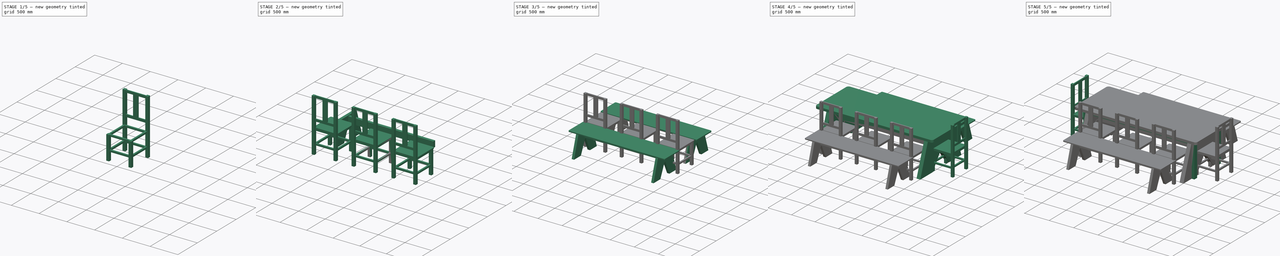
[diagram: build sequence overview — one tinted view per stage of 5, left to right]
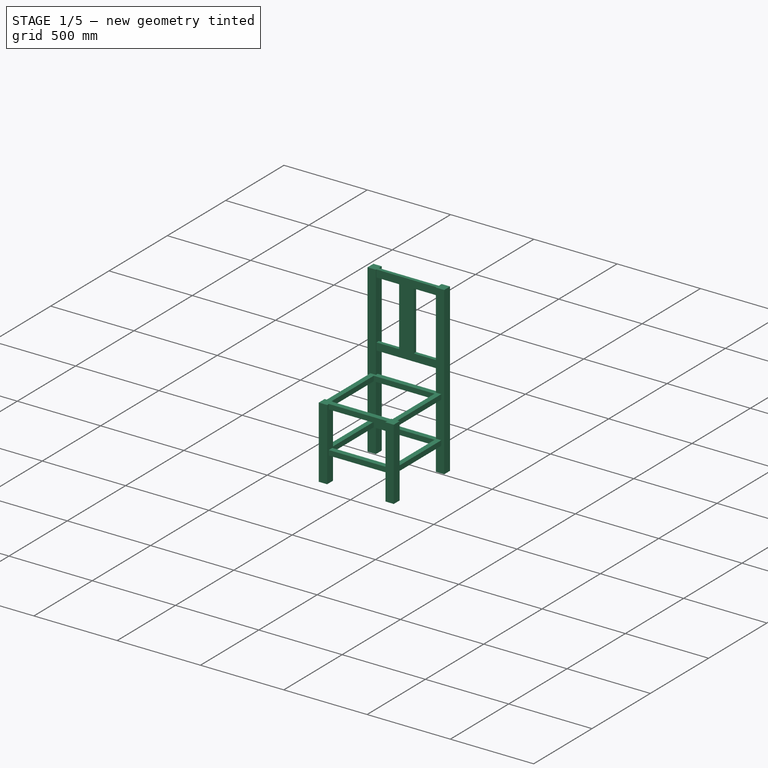
[diagram: stage 1 of 5 — iso view after this stage's code; geometry added in this stage tinted green]
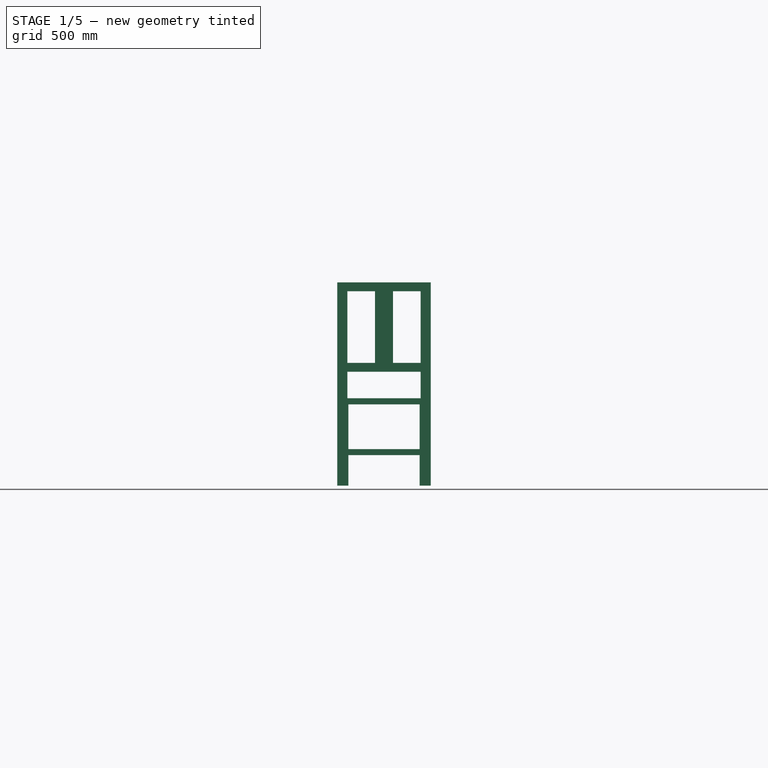
[diagram: stage 1 of 5 — front view after this stage's code; geometry added in this stage tinted green]
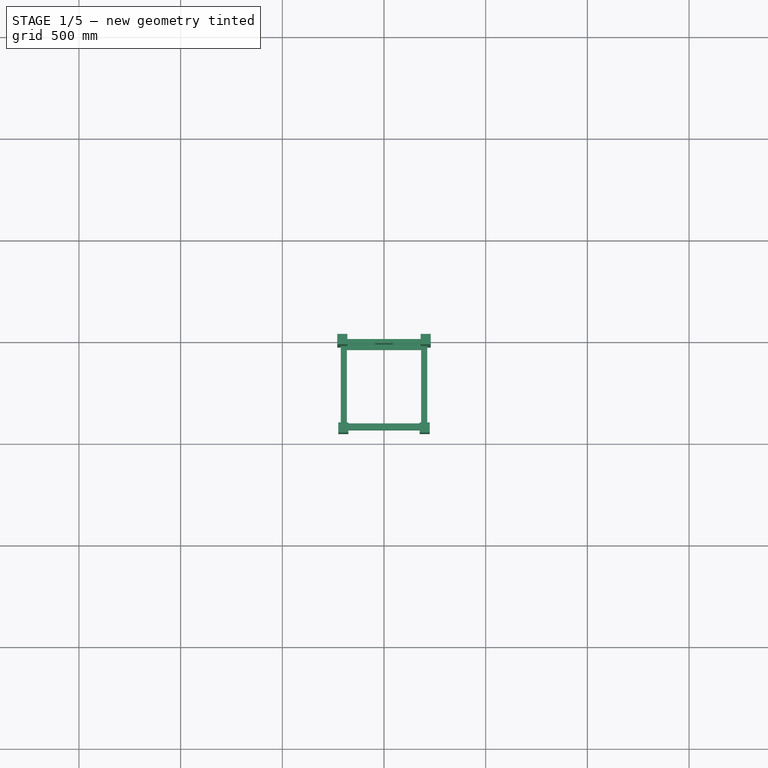
[diagram: stage 1 of 5 — top view after this stage's code; geometry added in this stage tinted green]
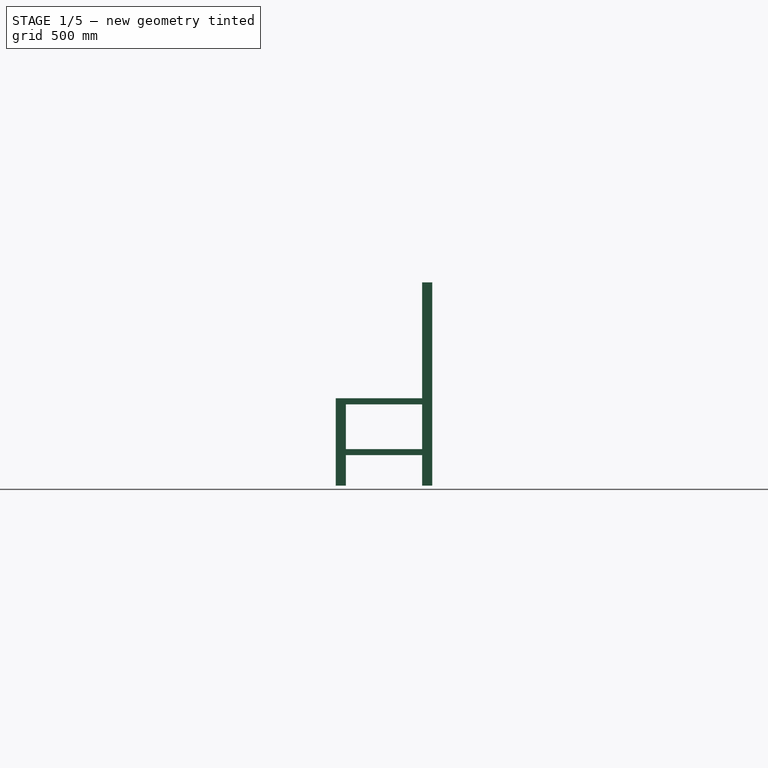
[diagram: stage 1 of 5 — right view after this stage's code; geometry added in this stage tinted green]
FCSTD DOCUMENT  (FreeCAD 0.21R33668 +26 (Git))
Label: Mesas e cadeiras
License: All rights reserved
LicenseURL: http://en.wikipedia.org/wiki/All_rights_reserved
objects: Sketcher::SketchObject×26, Part::Extrusion×26, App::DocumentObjectGroup×4, Part::Compound×3, Part::FeaturePython×3, Spreadsheet::Sheet×2, Part::Mirroring×1
note: 59 computed .brp shape members not serialized (recipe doc carries the construction recipe); baked Part::Feature solids carry a one-line shape summary decoded from their .brp

FEATURE [Sketcher::SketchObject] Sketch004
  FullyConstrained = true
  expr: Constraints[9] = <<Tab_assentos>>.largura_pes
  sketch-geometry (4):
    g0: LineSegment StartX=25 StartY=25 StartZ=0 EndX=-25 EndY=25 EndZ=0
    g1: LineSegment StartX=-25 StartY=25 StartZ=0 EndX=-25 EndY=-25 EndZ=0
    g2: LineSegment StartX=-25 StartY=-25 StartZ=0 EndX=25 EndY=-25 EndZ=0
    g3: LineSegment StartX=25 StartY=-25 StartZ=0 EndX=25 EndY=25 EndZ=0
  constraints (11):
    c: Coincident(g0,g1)
    c: Coincident(g1,g2)
    c: Coincident(g2,g3)
    c: Coincident(g3,g0)
    c: Horizontal(g0)
    c: Horizontal(g2)
    c: Vertical(g1)
    c: Vertical(g3)
    c: Equal(g2,g3)
    c: Distance(g3) = 50
    c: Symmetric(g1,g0,g-1)
FEATURE [Part::Extrusion] Extrude004  label="Pernas traseiras"
  Base = -> Sketch004
  Dir = (0,0,1)
  DirMode = 2
  FaceMakerClass = Part::FaceMakerBullseye
  LengthFwd = 1000
  LengthRev = 0
  Placement = pos=(-205,0,0) rot=(0,0,1;0rad)
  Solid = true
  Symmetric = false
  expr: .Placement.Base.x = -(<<Tab_assentos>>.largura / 2 - <<Tab_assentos>>.largura_pes / 2) - 5 mm
  expr: LengthFwd = <<Tab_assentos>>.altura_encosto
FEATURE [Sketcher::SketchObject] Sketch005
  FullyConstrained = true
  expr: Constraints[8] = <<Tab_assentos>>.largura_pes
  sketch-geometry (4):
    g0: LineSegment StartX=-25 StartY=25 StartZ=0 EndX=25 EndY=25 EndZ=0
    g1: LineSegment StartX=25 StartY=25 StartZ=0 EndX=25 EndY=-25 EndZ=0
    g2: LineSegment StartX=25 StartY=-25 StartZ=0 EndX=-25 EndY=-25 EndZ=0
    g3: LineSegment StartX=-25 StartY=-25 StartZ=0 EndX=-25 EndY=25 EndZ=0
  constraints (11):
    c: Coincident(g1,g2)
    c: Coincident(g2,g3)
    c: Coincident(g3,g0)
    c: Horizontal(g0)
    c: Horizontal(g2)
    c: Vertical(g1)
    c: Vertical(g3)
    c: Equal(g2,g3)
    c: Distance(g3) = 50
    c: Symmetric(g2,g0,g-1)
    c: Coincident(g1,g0)
FEATURE [Part::Extrusion] Extrude005  label="Pernas dianteiras"
  Base = -> Sketch005
  Dir = (0,0,1)
  DirMode = 2
  FaceMakerClass = Part::FaceMakerBullseye
  LengthFwd = 430
  LengthRev = 0
  Placement = pos=(200,-425,0) rot=(0,0,1;0rad)
  Solid = true
  Symmetric = false
  expr: .Placement.Base.x = <<Tab_assentos>>.largura / 2 - <<Tab_assentos>>.largura_pes / 2
  expr: .Placement.Base.y = -<<Tab_assentos>>.comprimento + <<Tab_assentos>>.largura_pes / 2
  expr: LengthFwd = <<Tab_assentos>>.altura - <<Tab_assentos>>.especura
FEATURE [Sketcher::SketchObject] Sketch006
  FullyConstrained = true
  Placement = pos=(0,0,0) rot=(1,0,0;1.5708rad)
  expr: Constraints[31] = .Constraints.especura * 2
  expr: Constraints[32] = (<<Tab_assentos>>.altura_encosto - <<Tab_assentos>>.altura) * 0.8
  expr: Constraints[33] = <<Tab_assentos>>.largura - 2 * <<Tab_assentos>>.largura_pes + 10 mm
  sketch-geometry (12):
    g0: LineSegment StartX=44 StartY=44 StartZ=0 EndX=44 EndY=396 EndZ=0
    g1: LineSegment StartX=-180 StartY=0 StartZ=0 EndX=180 EndY=0 EndZ=0
    g2: LineSegment StartX=180 StartY=0 StartZ=0 EndX=180 EndY=44 EndZ=0
    g3: LineSegment StartX=180 StartY=44 StartZ=0 EndX=44 EndY=44 EndZ=0
    g4: LineSegment StartX=-180 StartY=44 StartZ=0 EndX=-180 EndY=0 EndZ=0
    g5: LineSegment StartX=-180 StartY=440 StartZ=0 EndX=180 EndY=440 EndZ=0
    g6: LineSegment StartX=180 StartY=440 StartZ=0 EndX=180 EndY=396 EndZ=0
    g7: LineSegment StartX=180 StartY=396 StartZ=0 EndX=44 EndY=396 EndZ=0
    g8: LineSegment StartX=-180 StartY=396 StartZ=0 EndX=-180 EndY=440 EndZ=0
    g9: LineSegment StartX=-44 StartY=44 StartZ=0 EndX=-180 EndY=44 EndZ=0
    g10: LineSegment StartX=-44 StartY=396 StartZ=0 EndX=-180 EndY=396 EndZ=0
    g11: LineSegment StartX=-44 StartY=396 StartZ=0 EndX=-44 EndY=44 EndZ=0
  constraints (35):
    c: Vertical(g0)
    c: Coincident(g1,g2)
    c: Coincident(g2,g3)
    c: Coincident(g9,g4)
    c: Coincident(g4,g1)
    c: Horizontal(g1)
    c: Horizontal(g3)
    c: Vertical(g2)
    c: Vertical(g4)
    c: PointOnObject(g1,g-1)
    c: Coincident(g5,g6)
    c: Coincident(g6,g7)
    c: Coincident(g10,g8)
    c: Coincident(g8,g5)
    c: Horizontal(g5)
    c: Horizontal(g7)
    c: Vertical(g6)
    c: Vertical(g8)
    c: Coincident(g3,g0)
    c: Coincident(g9,g11)
    c: Vertical(g11)
    c: Coincident(g0,g7)
    c: Coincident(g11,g10)
    c: Equal(g5,g1)
    c: Equal(g4,g8)
    c: Equal(g6,g2)
    c: Equal(g6,g8)
    c: Horizontal(g9)
    c: Equal(g10,g7)
    c: Equal(g9,g3)
    c: Distance(g6) = 44  'especura'
    c: DistanceX(g10,g0) = 88
    c: DistanceY(g1,g5) = 440
    c: DistanceX(g5,g5) = 360
    c: Symmetric(g10,g0,g-2)
FEATURE [Part::Extrusion] Extrude006  label="Encosto"
  Base = -> Sketch006
  Dir = (0,-1,2e-16)
  DirMode = 2
  FaceMakerClass = Part::FaceMakerBullseye
  LengthFwd = 20
  LengthRev = 0
  Placement = pos=(0,0,560) rot=(0,0,1;0rad)
  Solid = true
  Symmetric = false
  expr: .Placement.Base.z = <<Tab_assentos>>.altura + (<<Tab_assentos>>.altura_encosto - <<Tab_assentos>>.altura) * 0.2
  expr: LengthFwd = <<Tab_assentos>>.especura
FEATURE [Sketcher::SketchObject] Sketch007
  FullyConstrained = true
  expr: Constraints[10] = <<Tab_assentos>>.comprimento - <<Tab_assentos>>.largura_pes / 2
  expr: Constraints[18] = <<Tab_assentos>>.largura_apoios
  expr: Constraints[19] = <<Tab_assentos>>.largura_apoios
  expr: Constraints[20] = <<Tab_assentos>>.largura_apoios
  expr: Constraints[21] = <<Tab_assentos>>.largura_apoios
  expr: Constraints[9] = <<Tab_assentos>>.largura - <<Tab_assentos>>.largura_pes / 2
  sketch-geometry (8):
    g0: LineSegment StartX=-212.5 StartY=0 StartZ=0 EndX=212.5 EndY=0 EndZ=0
    g1: LineSegment StartX=212.5 StartY=0 StartZ=0 EndX=212.5 EndY=-425 EndZ=0
    g2: LineSegment StartX=212.5 StartY=-425 StartZ=0 EndX=-212.5 EndY=-425 EndZ=0
    g3: LineSegment StartX=-212.5 StartY=-425 StartZ=0 EndX=-212.5 EndY=0 EndZ=0
    g4: LineSegment StartX=-182.5 StartY=-30 StartZ=0 EndX=182.5 EndY=-30 EndZ=0
    g5: LineSegment StartX=182.5 StartY=-30 StartZ=0 EndX=182.5 EndY=-395 EndZ=0
    g6: LineSegment StartX=182.5 StartY=-395 StartZ=0 EndX=-182.5 EndY=-395 EndZ=0
    g7: LineSegment StartX=-182.5 StartY=-395 StartZ=0 EndX=-182.5 EndY=-30 EndZ=0
  constraints (23):
    c: Coincident(g0,g1)
    c: Coincident(g1,g2)
    c: Coincident(g2,g3)
    c: Coincident(g3,g0)
    c: Horizontal(g0)
    c: Horizontal(g2)
    c: Vertical(g1)
    c: Vertical(g3)
    c: PointOnObject(g0,g-1)
    c: DistanceX(g0,g0) = 425
    c: Distance(g3) = 425
    c: Coincident(g4,g5)
    c: Coincident(g5,g6)
    c: Coincident(g6,g7)
    c: Coincident(g7,g4)
    c: Horizontal(g6)
    c: Vertical(g5)
    c: Vertical(g7)
    c: DistanceX(g4,g0) = 30
    c: DistanceY(g4,g0) = 30
    c: DistanceY(g2,g6) = 30
    c: DistanceX(g2,g6) = 30
    c: Symmetric(g4,g4,g-2)
FEATURE [Part::Extrusion] Extrude007  label="apoio acento "
  Base = -> Sketch007
  Dir = (0,0,1)
  DirMode = 2
  FaceMakerClass = Part::FaceMakerBullseye
  LengthFwd = 30
  LengthRev = 0
  Placement = pos=(0,-10,400) rot=(0,0,1;0rad)
  Solid = true
  Symmetric = false
  expr: .Placement.Base.z = <<Tab_assentos>>.altura - <<Tab_assentos>>.especura - <<Tab_assentos>>.largura_apoios
  expr: LengthFwd = <<Tab_assentos>>.largura_apoios
FEATURE [Sketcher::SketchObject] Sketch008
  FullyConstrained = true
  expr: Constraints[10] = <<Tab_assentos>>.comprimento - <<Tab_assentos>>.largura_pes / 2
  expr: Constraints[18] = <<Tab_assentos>>.largura_apoios
  expr: Constraints[19] = <<Tab_assentos>>.largura_apoios
  expr: Constraints[20] = <<Tab_assentos>>.largura_apoios
  expr: Constraints[21] = <<Tab_assentos>>.largura_apoios
  expr: Constraints[9] = <<Tab_assentos>>.largura - <<Tab_assentos>>.largura_pes / 2
  sketch-geometry (8):
    g0: LineSegment StartX=-212.5 StartY=0 StartZ=0 EndX=212.5 EndY=0 EndZ=0
    g1: LineSegment StartX=212.5 StartY=0 StartZ=0 EndX=212.5 EndY=-425 EndZ=0
    g2: LineSegment StartX=212.5 StartY=-425 StartZ=0 EndX=-212.5 EndY=-425 EndZ=0
    g3: LineSegment StartX=-212.5 StartY=-425 StartZ=0 EndX=-212.5 EndY=0 EndZ=0
    g4: LineSegment StartX=-182.5 StartY=-30 StartZ=0 EndX=182.5 EndY=-30 EndZ=0
    g5: LineSegment StartX=182.5 StartY=-30 StartZ=0 EndX=182.5 EndY=-395 EndZ=0
    g6: LineSegment StartX=182.5 StartY=-395 StartZ=0 EndX=-182.5 EndY=-395 EndZ=0
    g7: LineSegment StartX=-182.5 StartY=-395 StartZ=0 EndX=-182.5 EndY=-30 EndZ=0
  constraints (23):
    c: Coincident(g0,g1)
    c: Coincident(g1,g2)
    c: Coincident(g2,g3)
    c: Coincident(g3,g0)
    c: Horizontal(g0)
    c: Horizontal(g2)
    c: Vertical(g1)
    c: Vertical(g3)
    c: PointOnObject(g0,g-1)
    c: DistanceX(g0,g0) = 425
    c: Distance(g3) = 425
    c: Coincident(g4,g5)
    c: Coincident(g5,g6)
    c: Coincident(g6,g7)
    c: Coincident(g7,g4)
    c: Horizontal(g6)
    c: Vertical(g5)
    c: Vertical(g7)
    c: DistanceX(g4,g0) = 30
    c: DistanceY(g4,g0) = 30
    c: DistanceY(g2,g6) = 30
    c: DistanceX(g2,g6) = 30
    c: Symmetric(g4,g4,g-2)
FEATURE [Part::Extrusion] Extrude008  label="apoio pés"
  Base = -> Sketch008
  Dir = (0,0,1)
  DirMode = 2
  FaceMakerClass = Part::FaceMakerBullseye
  LengthFwd = 30
  LengthRev = 0
  Placement = pos=(0,-10,150) rot=(0,0,1;0rad)
  Solid = true
  Symmetric = false
  expr: .Placement.Base.z = <<Tab_assentos>>.altura * 1 / 3
  expr: LengthFwd = <<Tab_assentos>>.largura_apoios
FEATURE [App::DocumentObjectGroup] Group  label="Mesa_genérica"
  Group = -> [Extrude001,Extrude002,Extrude,Extrude009,Extrude010,Extrude011]
FEATURE [Sketcher::SketchObject] Sketch012
  FullyConstrained = true
  expr: Constraints[8] = <<Tab_assentos>>.largura_pes
  sketch-geometry (4):
    g0: LineSegment StartX=-25 StartY=25 StartZ=0 EndX=25 EndY=25 EndZ=0
    g1: LineSegment StartX=25 StartY=25 StartZ=0 EndX=25 EndY=-25 EndZ=0
    g2: LineSegment StartX=25 StartY=-25 StartZ=0 EndX=-25 EndY=-25 EndZ=0
    g3: LineSegment StartX=-25 StartY=-25 StartZ=0 EndX=-25 EndY=25 EndZ=0
  constraints (11):
    c: Coincident(g1,g2)
    c: Coincident(g2,g3)
    c: Coincident(g3,g0)
    c: Horizontal(g0)
    c: Horizontal(g2)
    c: Vertical(g1)
    c: Vertical(g3)
    c: Equal(g2,g3)
    c: Distance(g3) = 50
    c: Symmetric(g2,g0,g-1)
    c: Coincident(g1,g0)
FEATURE [Part::Extrusion] Extrude012  label="Pernas dianteiras001"
  Base = -> Sketch012
  Dir = (0,0,1)
  DirMode = 2
  FaceMakerClass = Part::FaceMakerBullseye
  LengthFwd = 430
  LengthRev = 0
  Placement = pos=(-200,-425,0) rot=(0,0,1;0rad)
  Solid = true
  Symmetric = false
  expr: .Placement.Base.x = -(<<Tab_assentos>>.largura / 2 - <<Tab_assentos>>.largura_pes / 2)
  expr: .Placement.Base.y = -<<Tab_assentos>>.comprimento + <<Tab_assentos>>.largura_pes / 2
  expr: LengthFwd = <<Tab_assentos>>.altura - <<Tab_assentos>>.especura
FEATURE [Sketcher::SketchObject] Sketch013
  FullyConstrained = true
  expr: Constraints[9] = <<Tab_assentos>>.largura_pes
  sketch-geometry (4):
    g0: LineSegment StartX=25 StartY=25 StartZ=0 EndX=-25 EndY=25 EndZ=0
    g1: LineSegment StartX=-25 StartY=25 StartZ=0 EndX=-25 EndY=-25 EndZ=0
    g2: LineSegment StartX=-25 StartY=-25 StartZ=0 EndX=25 EndY=-25 EndZ=0
    g3: LineSegment StartX=25 StartY=-25 StartZ=0 EndX=25 EndY=25 EndZ=0
  constraints (11):
    c: Coincident(g0,g1)
    c: Coincident(g1,g2)
    c: Coincident(g2,g3)
    c: Coincident(g3,g0)
    c: Horizontal(g0)
    c: Horizontal(g2)
    c: Vertical(g1)
    c: Vertical(g3)
    c: Equal(g2,g3)
    c: Distance(g3) = 50
    c: Symmetric(g1,g0,g-1)
FEATURE [Part::Extrusion] Extrude013  label="Pernas traseiras001"
  Base = -> Sketch013
  Dir = (0,0,1)
  DirMode = 2
  FaceMakerClass = Part::FaceMakerBullseye
  LengthFwd = 1000
  LengthRev = 0
  Placement = pos=(205,0,0) rot=(0,0,1;0rad)
  Solid = true
  Symmetric = false
  expr: .Placement.Base.x = <<Tab_assentos>>.largura / 2 - <<Tab_assentos>>.largura_pes / 2 + 5 mm
  expr: LengthFwd = <<Tab_assentos>>.altura_encosto
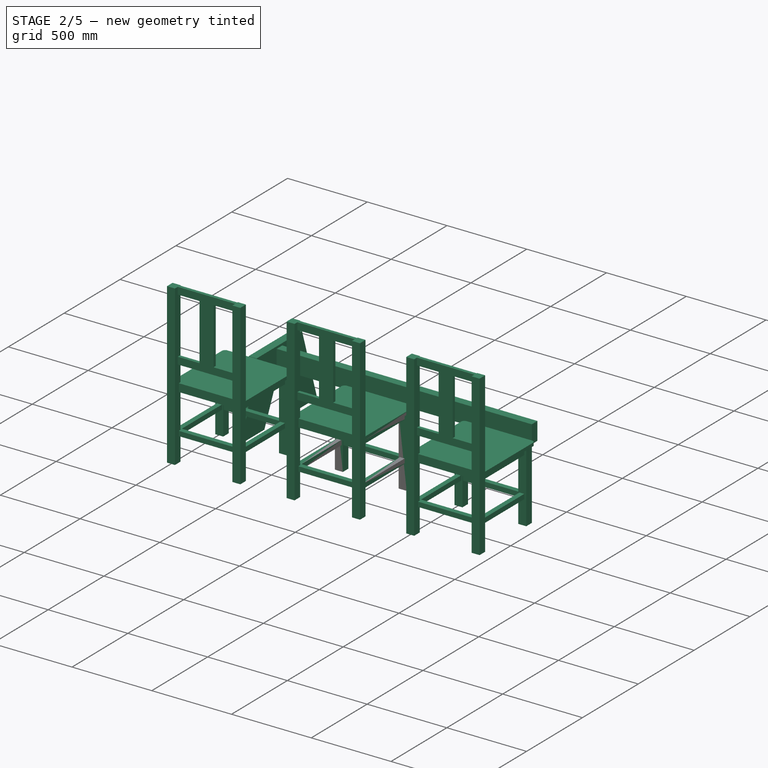
[diagram: stage 2 of 5 — iso view after this stage's code; geometry added in this stage tinted green]
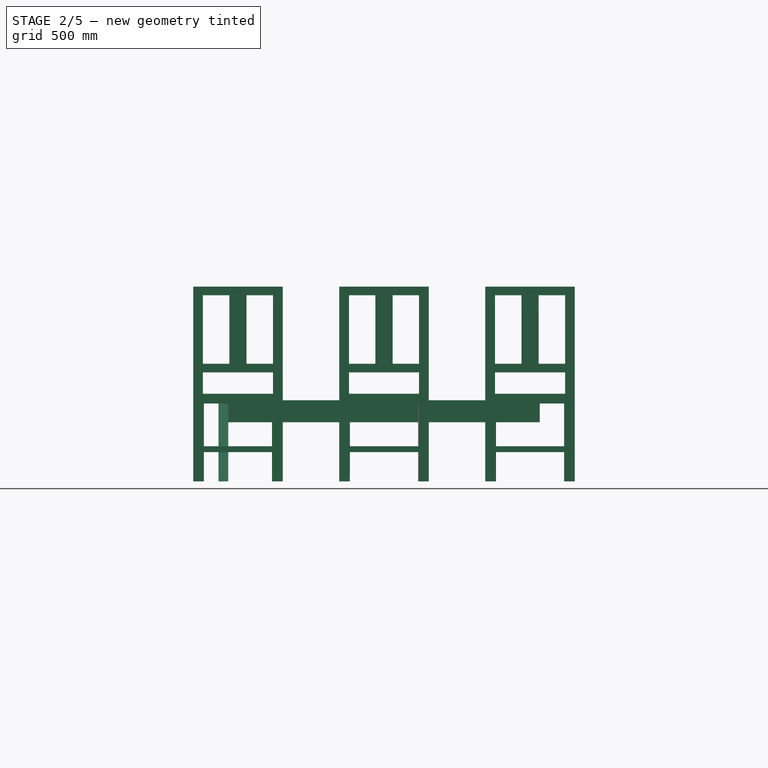
[diagram: stage 2 of 5 — front view after this stage's code; geometry added in this stage tinted green]
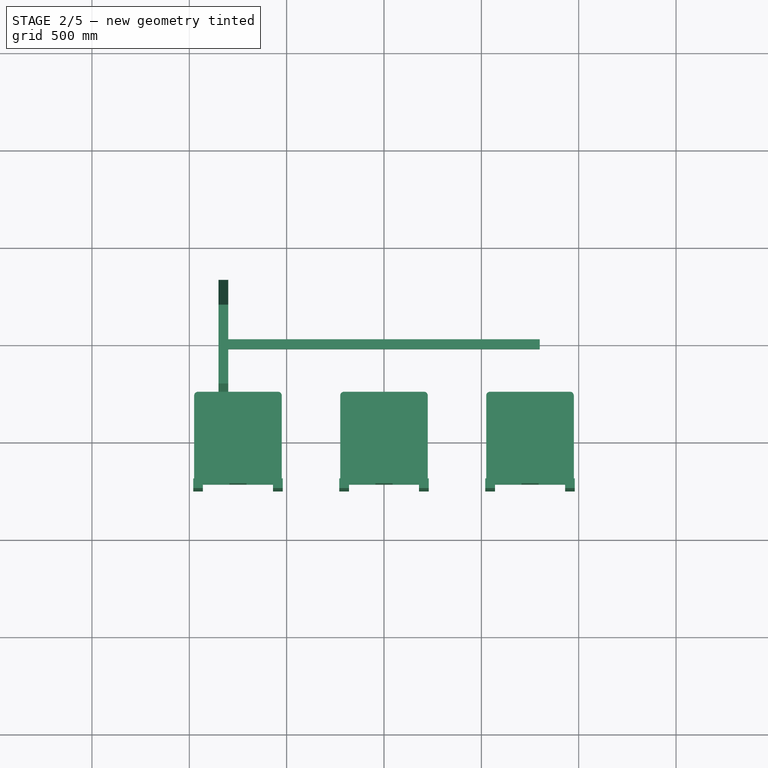
[diagram: stage 2 of 5 — top view after this stage's code; geometry added in this stage tinted green]
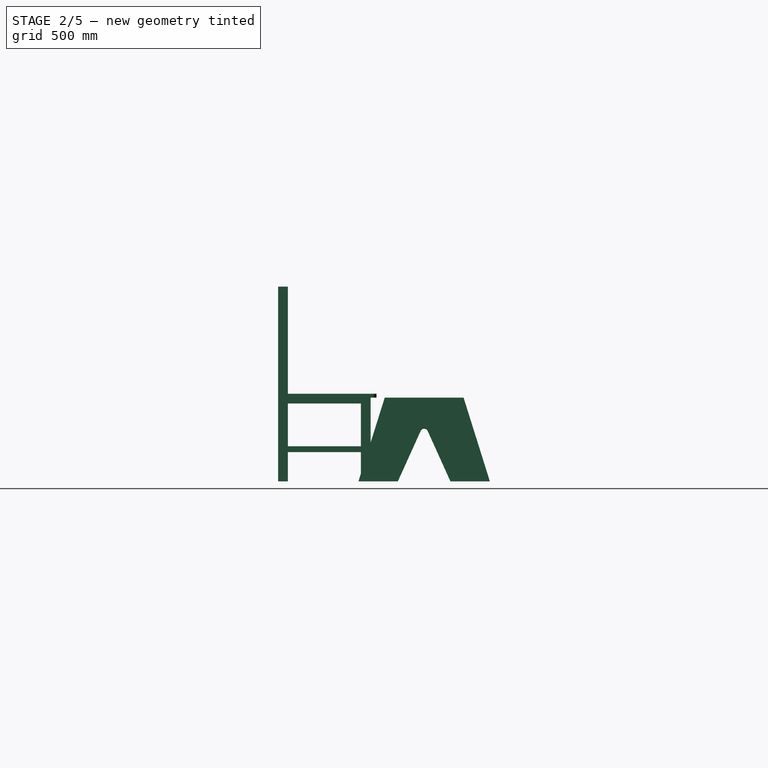
[diagram: stage 2 of 5 — right view after this stage's code; geometry added in this stage tinted green]
FEATURE [Spreadsheet::Sheet] Spreadsheet001  label="Tab_assentos"
  cells = A1='DIMENÇÕES; A2='cm; B2(largura)==45 cm; A3='cm; B3(comprimento)==45 cm; A4='Especura; B4(especura)==20 mm; A5='Altura; B5(altura)==45 cm; A6='Altura Encosto; B6(altura_encosto)==1 m; A7='Largura Pés; B7(largura_pes)==5 cm; A8='Largura apoios; B8(largura_apoios)==3 cm; A9='Suavisar Contos; B9(suavisar_cantos)==20 mm
FEATURE [Sketcher::SketchObject] Sketch003
  FullyConstrained = true
  expr: Constraints[13] = <<Tab_assentos>>.comprimento
  expr: Constraints[14] = <<Tab_assentos>>.suavisar_cantos
  expr: Constraints[6] = <<Tab_assentos>>.largura
  sketch-geometry (6):
    g0: LineSegment StartX=-225 StartY=0 StartZ=0 EndX=225 EndY=0 EndZ=0
    g1: LineSegment StartX=225 StartY=0 StartZ=0 EndX=225 EndY=-450 EndZ=0
    g2: LineSegment StartX=205 StartY=-470 StartZ=0 EndX=-205 EndY=-470 EndZ=0
    g3: LineSegment StartX=-225 StartY=-450 StartZ=0 EndX=-225 EndY=0 EndZ=0
    g4: ArcOfCircle CenterX=-205 CenterY=-450 CenterZ=0 NormalX=0 NormalY=0 NormalZ=1 AngleXU=0 Radius=20 StartAngle=3.14159 EndAngle=4.71239
    g5: ArcOfCircle CenterX=205 CenterY=-450 CenterZ=0 NormalX=0 NormalY=0 NormalZ=1 AngleXU=0 Radius=20 StartAngle=4.71239 EndAngle=6.28319
  constraints (15):
    c: Coincident(g0,g1)
    c: Coincident(g3,g0)
    c: Horizontal(g0)
    c: Horizontal(g2)
    c: Vertical(g1)
    c: Vertical(g3)
    c: DistanceX(g0,g0) = 450
    c: Tangent(g2,g4) = 1.5708
    c: Tangent(g3,g4) = 1.5708
    c: Tangent(g2,g5) = 1.5708
    c: Tangent(g1,g5) = 1.5708
    c: Equal(g4,g5)
    c: Symmetric(g0,g0,g-1)
    c: Distance(g3) = 450
    c: Radius(g4) = 20
FEATURE [Part::Extrusion] Extrude003  label="Tampo001"
  Base = -> Sketch003
  Dir = (0,0,1)
  DirMode = 2
  FaceMakerClass = Part::FaceMakerBullseye
  LengthFwd = 20
  LengthRev = 0
  Placement = pos=(0,-10,430) rot=(0,0,1;0rad)
  Solid = true
  Symmetric = false
  expr: .Placement.Base.z = <<Tab_assentos>>.altura - <<Tab_assentos>>.especura
  expr: LengthFwd = <<Tab_assentos>>.especura
FEATURE [Part::Compound] Compound
  Links = -> [Extrude013,Extrude012,Extrude008,Extrude007,Extrude006,Extrude005,Extrude003,Extrude004]
FEATURE [Part::FeaturePython] Array  # Draft array (typed FeaturePython)
  Angle = 360
  ArrayType = 0
  Axis = (0,0,1)
  Base = -> Compound
  Center = (0,0,0)
  Count = 3
  Fuse = false
  IntervalAxis = (0,0,0)
  IntervalX = (750,0,0)
  IntervalY = (0,1,0)
  IntervalZ = (0,0,50)
  NumberCircles = 3
  NumberPolar = 5
  NumberX = 3
  NumberY = 1
  NumberZ = 1
  Placement = pos=(-750,725,0) rot=(0,0,1;0rad)
  RadialDistance = 50
  Symmetry = 1
  TangentialDistance = 25
  expr: .IntervalX.x = <<Tab_mesa>>.comprimento * 0.9 / <<Tab_mesa>>.n_cadeiras
  expr: .Placement.Base.x = -(<<Tab_mesa>>.comprimento * 0.9 / <<Tab_mesa>>.n_cadeiras / 2) * (<<Tab_mesa>>.n_cadeiras - 1)
  expr: .Placement.Base.y = <<Tab_mesa>>.largura / 2 + <<Tab_assentos>>.comprimento / 2
  expr: NumberX = <<Tab_mesa>>.n_cadeiras
FEATURE [Sketcher::SketchObject] Sketch024
  FullyConstrained = true
  Placement = pos=(0,0,0) rot=(0.57735,0.57735,0.57735;2.0944rad)
  expr: .Constraints.largura = <<Tab_assentos>>.largura - <<Tab_assentos>>.comprimento * 0.1
  expr: Constraints[12] = .Constraints.largura / 2
  expr: Constraints[14] = .Constraints.largura / 3
  expr: Constraints[17] = <<Tab_assentos>>.suavisar_cantos
  expr: Constraints[19] = <<Tab_assentos>>.altura - <<Tab_assentos>>.especura
  expr: Constraints[20] = <<Tab_mesa>>.altura / 3
  sketch-geometry (8):
    g0: LineSegment StartX=-337.5 StartY=0 StartZ=0 EndX=-202.5 EndY=430 EndZ=0
    g1: LineSegment StartX=-202.5 StartY=430 StartZ=0 EndX=202.5 EndY=430 EndZ=0
    g2: LineSegment StartX=202.5 StartY=430 StartZ=0 EndX=337.5 EndY=0 EndZ=0
    g3: LineSegment StartX=337.5 StartY=0 StartZ=0 EndX=135 EndY=0 EndZ=0
    g4: LineSegment StartX=135 StartY=0 StartZ=0 EndX=18.2234 EndY=258.241 EndZ=0
    g5: LineSegment StartX=-18.2234 StartY=258.241 StartZ=0 EndX=-135 EndY=0 EndZ=0
    g6: LineSegment StartX=-135 StartY=0 StartZ=0 EndX=-337.5 EndY=0 EndZ=0
    g7: ArcOfCircle CenterX=0 CenterY=250 CenterZ=0 NormalX=0 NormalY=0 NormalZ=1 AngleXU=0 Radius=20 StartAngle=0.424683 EndAngle=2.71691
  constraints (21):
    c: Coincident(g1,g0)
    c: Coincident(g2,g1)
    c: PointOnObject(g2,g-1)
    c: Coincident(g3,g2)
    c: PointOnObject(g3,g-1)
    c: Coincident(g4,g3)
    c: Coincident(g6,g5)
    c: Coincident(g6,g0)
    c: PointOnObject(g0,g-1)
    c: Symmetric(g0,g1,g-2)
    c: Equal(g6,g3)
    c: DistanceX(g1,g1) = 405  'largura'
    c: DistanceX(g6,g6) = 202.5
    c: Symmetric(g5,g3,g-2)
    c: DistanceX(g5,g-1) = 135
    c: Tangent(g5,g7) = -1.5708
    c: Tangent(g4,g7) = -1.5708
    c: Radius(g7) = 20
    c: PointOnObject(g7,g-2)
    c: DistanceY(g0,g0) = 430
    c: DistanceY(g-1,g7) = 250
FEATURE [Part::Extrusion] Extrude024  label="pé003"
  Base = -> Sketch024
  Dir = (1,0,0)
  DirMode = 2
  FaceMakerClass = Part::FaceMakerBullseye
  LengthFwd = 50
  LengthRev = 0
  Placement = pos=(-850,0,0) rot=(0,0,1;0rad)
  Solid = true
  Symmetric = false
  expr: .Placement.Base.x = -<<Tab_mesa>>.comprimento / 2 * 0.64 - <<Tab_assentos>>.largura_pes
  expr: LengthFwd = <<Tab_assentos>>.largura_pes
FEATURE [Sketcher::SketchObject] Sketch025
  FullyConstrained = true
  Placement = pos=(0,0,0) rot=(1,0,0;1.5708rad)
  expr: Constraints[10] = <<Tab_mesa>>.comprimento * 0.64
  expr: Constraints[9] = <<Tab_assentos>>.altura / 4
  sketch-geometry (4):
    g0: LineSegment StartX=-800 StartY=56.25 StartZ=0 EndX=800 EndY=56.25 EndZ=0
    g1: LineSegment StartX=800 StartY=56.25 StartZ=0 EndX=800 EndY=-56.25 EndZ=0
    g2: LineSegment StartX=800 StartY=-56.25 StartZ=0 EndX=-800 EndY=-56.25 EndZ=0
    g3: LineSegment StartX=-800 StartY=-56.25 StartZ=0 EndX=-800 EndY=56.25 EndZ=0
  constraints (11):
    c: Coincident(g0,g1)
    c: Coincident(g1,g2)
    c: Coincident(g2,g3)
    c: Coincident(g3,g0)
    c: Horizontal(g0)
    c: Horizontal(g2)
    c: Vertical(g1)
    c: Vertical(g3)
    c: Symmetric(g0,g1,g-1)
    c: DistanceY(g3,g3) = 112.5
    c: DistanceX(g0,g0) = 1600
FEATURE [Part::Extrusion] Extrude025  label="Suporte003"
  Base = -> Sketch025
  Dir = (0,-1,2e-16)
  DirMode = 2
  FaceMakerClass = Part::FaceMakerBullseye
  LengthFwd = 25
  LengthRev = 25
  Placement = pos=(0,0,360) rot=(0,0,1;0rad)
  Solid = true
  Symmetric = false
  expr: .Placement.Base.z = <<Tab_assentos>>.altura * 0.8
  expr: LengthFwd = <<Tab_assentos>>.largura_pes / 2
  expr: LengthRev = <<Tab_assentos>>.largura_pes / 2
FEATURE [App::DocumentObjectGroup] Group003  label="Bancos"
  Group = -> [Compound001,Compound002]
FEATURE [Part::Mirroring] Mirror  label="Array (espelhado)"
  Base = (-1500,5.68e-14,0)
  Normal = (0,-1,0)
  Source = -> Array
FEATURE [App::DocumentObjectGroup] Group001  label="Cadeira genérica"
  Group = -> [Array,Clone001,Clone002,Mirror]
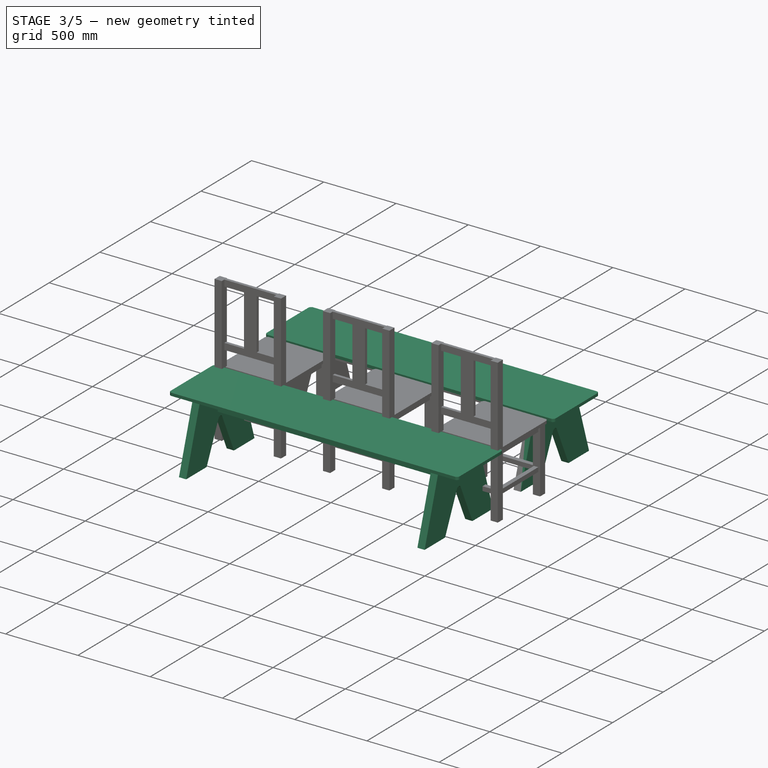
[diagram: stage 3 of 5 — iso view after this stage's code; geometry added in this stage tinted green]
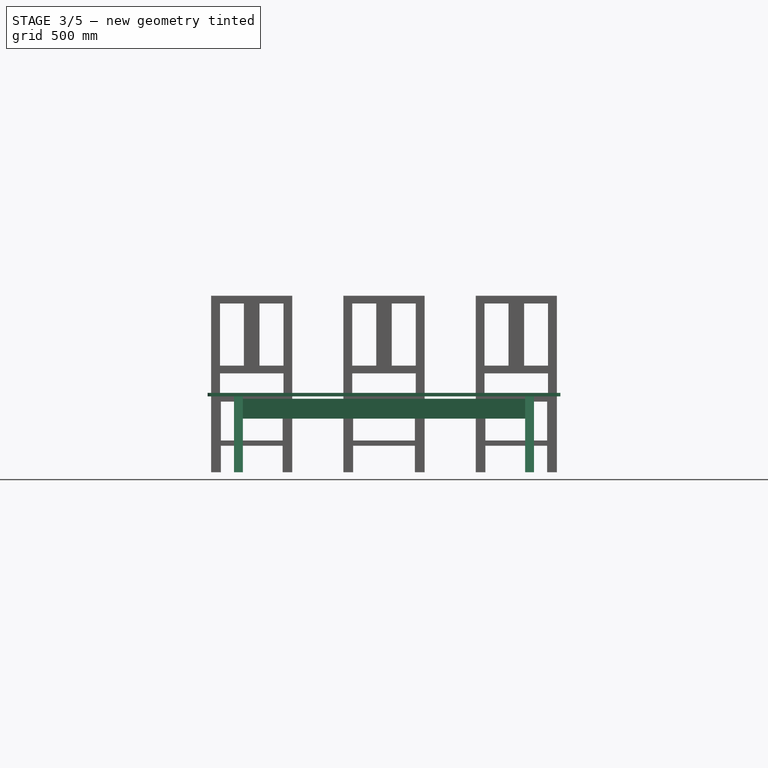
[diagram: stage 3 of 5 — front view after this stage's code; geometry added in this stage tinted green]
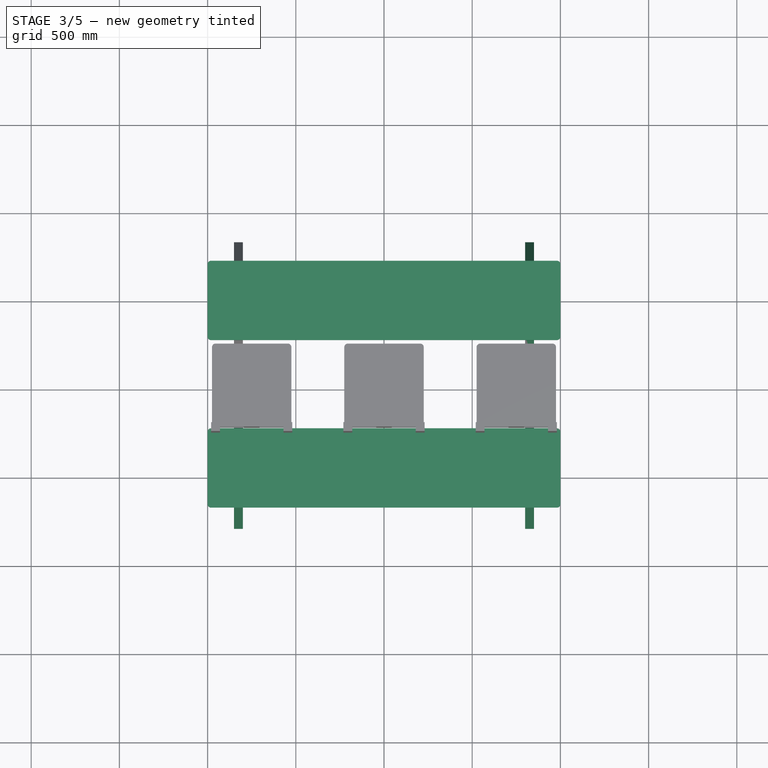
[diagram: stage 3 of 5 — top view after this stage's code; geometry added in this stage tinted green]
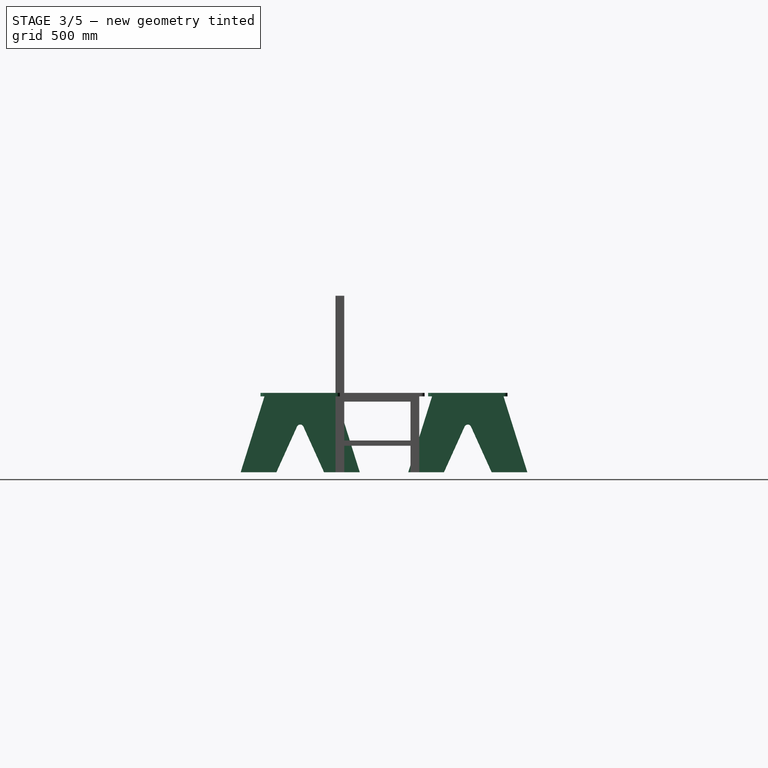
[diagram: stage 3 of 5 — right view after this stage's code; geometry added in this stage tinted green]
FEATURE [App::DocumentObjectGroup] Group002  label="Mesa Rustica"
  Group = -> [Extrude014,Extrude015,Extrude016,Extrude017]
FEATURE [Sketcher::SketchObject] Sketch018
  FullyConstrained = true
  expr: Constraints[15] = <<Tab_mesa>>.comprimento * 0.8
  expr: Constraints[16] = <<Tab_assentos>>.largura
  expr: Constraints[17] = <<Tab_assentos>>.suavisar_cantos
  sketch-geometry (8):
    g0: LineSegment StartX=-980 StartY=225 StartZ=0 EndX=980 EndY=225 EndZ=0
    g1: LineSegment StartX=1000 StartY=205 StartZ=0 EndX=1000 EndY=-205 EndZ=0
    g2: LineSegment StartX=980 StartY=-225 StartZ=0 EndX=-980 EndY=-225 EndZ=0
    g3: LineSegment StartX=-1000 StartY=-205 StartZ=0 EndX=-1000 EndY=205 EndZ=0
    g4: ArcOfCircle CenterX=-980 CenterY=205 CenterZ=0 NormalX=0 NormalY=0 NormalZ=1 AngleXU=0 Radius=20 StartAngle=1.5708 EndAngle=3.14159
    g5: ArcOfCircle CenterX=-980 CenterY=-205 CenterZ=0 NormalX=0 NormalY=0 NormalZ=1 AngleXU=0 Radius=20 StartAngle=3.14159 EndAngle=4.71239
    g6: ArcOfCircle CenterX=980 CenterY=205 CenterZ=0 NormalX=0 NormalY=0 NormalZ=1 AngleXU=0 Radius=20 StartAngle=0 EndAngle=1.5708
    g7: ArcOfCircle CenterX=980 CenterY=-205 CenterZ=0 NormalX=0 NormalY=0 NormalZ=1 AngleXU=0 Radius=20 StartAngle=4.71239 EndAngle=6.28319
  constraints (19):
    c: Horizontal(g0)
    c: Horizontal(g2)
    c: Vertical(g1)
    c: Vertical(g3)
    c: Tangent(g0,g4) = 1.5708
    c: Tangent(g3,g4) = 1.5708
    c: Tangent(g3,g5) = 1.5708
    c: Tangent(g2,g5) = 1.5708
    c: Tangent(g0,g6) = 1.5708
    c: Tangent(g1,g6) = 1.5708
    c: Tangent(g1,g7) = 1.5708
    c: Tangent(g2,g7) = 1.5708
    c: Equal(g5,g4)
    c: Equal(g6,g7)
    c: Equal(g7,g5)
    c: DistanceX(g3,g1) = 2000
    c: DistanceY(g2,g0) = 450
    c: Radius(g4) = 20
    c: Symmetric(g4,g7,g-1)
FEATURE [Part::Extrusion] Extrude018  label="Assento"
  Base = -> Sketch018
  Dir = (0,0,1)
  DirMode = 2
  FaceMakerClass = Part::FaceMakerBullseye
  LengthFwd = 20
  LengthRev = 0
  Placement = pos=(0,0,430) rot=(0,0,1;0rad)
  Solid = true
  Symmetric = false
  expr: .Placement.Base.z = <<Tab_assentos>>.altura - <<Tab_assentos>>.especura
  expr: LengthFwd = <<Tab_assentos>>.especura
FEATURE [Sketcher::SketchObject] Sketch019
  FullyConstrained = true
  Placement = pos=(0,0,0) rot=(0.57735,0.57735,0.57735;2.0944rad)
  expr: .Constraints.largura = <<Tab_assentos>>.largura - <<Tab_assentos>>.comprimento * 0.1
  expr: Constraints[12] = .Constraints.largura / 2
  expr: Constraints[14] = .Constraints.largura / 3
  expr: Constraints[17] = <<Tab_assentos>>.suavisar_cantos
  expr: Constraints[19] = <<Tab_assentos>>.altura - <<Tab_assentos>>.especura
  expr: Constraints[20] = <<Tab_mesa>>.altura / 3
  sketch-geometry (8):
    g0: LineSegment StartX=-337.5 StartY=0 StartZ=0 EndX=-202.5 EndY=430 EndZ=0
    g1: LineSegment StartX=-202.5 StartY=430 StartZ=0 EndX=202.5 EndY=430 EndZ=0
    g2: LineSegment StartX=202.5 StartY=430 StartZ=0 EndX=337.5 EndY=0 EndZ=0
    g3: LineSegment StartX=337.5 StartY=0 StartZ=0 EndX=135 EndY=0 EndZ=0
    g4: LineSegment StartX=135 StartY=0 StartZ=0 EndX=18.2234 EndY=258.241 EndZ=0
    g5: LineSegment StartX=-18.2234 StartY=258.241 StartZ=0 EndX=-135 EndY=0 EndZ=0
    g6: LineSegment StartX=-135 StartY=0 StartZ=0 EndX=-337.5 EndY=0 EndZ=0
    g7: ArcOfCircle CenterX=0 CenterY=250 CenterZ=0 NormalX=0 NormalY=0 NormalZ=1 AngleXU=0 Radius=20 StartAngle=0.424683 EndAngle=2.71691
  constraints (21):
    c: Coincident(g1,g0)
    c: Coincident(g2,g1)
    c: PointOnObject(g2,g-1)
    c: Coincident(g3,g2)
    c: PointOnObject(g3,g-1)
    c: Coincident(g4,g3)
    c: Coincident(g6,g5)
    c: Coincident(g6,g0)
    c: PointOnObject(g0,g-1)
    c: Symmetric(g0,g1,g-2)
    c: Equal(g6,g3)
    c: DistanceX(g1,g1) = 405  'largura'
    c: DistanceX(g6,g6) = 202.5
    c: Symmetric(g5,g3,g-2)
    c: DistanceX(g5,g-1) = 135
    c: Tangent(g5,g7) = -1.5708
    c: Tangent(g4,g7) = -1.5708
    c: Radius(g7) = 20
    c: PointOnObject(g7,g-2)
    c: DistanceY(g0,g0) = 430
    c: DistanceY(g-1,g7) = 250
FEATURE [Part::Extrusion] Extrude019  label="pé"
  Base = -> Sketch019
  Dir = (1,0,0)
  DirMode = 2
  FaceMakerClass = Part::FaceMakerBullseye
  LengthFwd = 50
  LengthRev = 0
  Placement = pos=(800,0,0) rot=(0,0,1;0rad)
  Solid = true
  Symmetric = false
  expr: .Placement.Base.x = <<Tab_mesa>>.comprimento / 2 * 0.64
  expr: LengthFwd = <<Tab_assentos>>.largura_pes
FEATURE [Sketcher::SketchObject] Sketch020
  FullyConstrained = true
  Placement = pos=(0,0,0) rot=(0.57735,0.57735,0.57735;2.0944rad)
  expr: .Constraints.largura = <<Tab_assentos>>.largura - <<Tab_assentos>>.comprimento * 0.1
  expr: Constraints[12] = .Constraints.largura / 2
  expr: Constraints[14] = .Constraints.largura / 3
  expr: Constraints[17] = <<Tab_assentos>>.suavisar_cantos
  expr: Constraints[19] = <<Tab_assentos>>.altura - <<Tab_assentos>>.especura
  expr: Constraints[20] = <<Tab_mesa>>.altura / 3
  sketch-geometry (8):
    g0: LineSegment StartX=-337.5 StartY=0 StartZ=0 EndX=-202.5 EndY=430 EndZ=0
    g1: LineSegment StartX=-202.5 StartY=430 StartZ=0 EndX=202.5 EndY=430 EndZ=0
    g2: LineSegment StartX=202.5 StartY=430 StartZ=0 EndX=337.5 EndY=0 EndZ=0
    g3: LineSegment StartX=337.5 StartY=0 StartZ=0 EndX=135 EndY=0 EndZ=0
    g4: LineSegment StartX=135 StartY=0 StartZ=0 EndX=18.2234 EndY=258.241 EndZ=0
    g5: LineSegment StartX=-18.2234 StartY=258.241 StartZ=0 EndX=-135 EndY=0 EndZ=0
    g6: LineSegment StartX=-135 StartY=0 StartZ=0 EndX=-337.5 EndY=0 EndZ=0
    g7: ArcOfCircle CenterX=0 CenterY=250 CenterZ=0 NormalX=0 NormalY=0 NormalZ=1 AngleXU=0 Radius=20 StartAngle=0.424683 EndAngle=2.71691
  constraints (21):
    c: Coincident(g1,g0)
    c: Coincident(g2,g1)
    c: PointOnObject(g2,g-1)
    c: Coincident(g3,g2)
    c: PointOnObject(g3,g-1)
    c: Coincident(g4,g3)
    c: Coincident(g6,g5)
    c: Coincident(g6,g0)
    c: PointOnObject(g0,g-1)
    c: Symmetric(g0,g1,g-2)
    c: Equal(g6,g3)
    c: DistanceX(g1,g1) = 405  'largura'
    c: DistanceX(g6,g6) = 202.5
    c: Symmetric(g5,g3,g-2)
    c: DistanceX(g5,g-1) = 135
    c: Tangent(g5,g7) = -1.5708
    c: Tangent(g4,g7) = -1.5708
    c: Radius(g7) = 20
    c: PointOnObject(g7,g-2)
    c: DistanceY(g0,g0) = 430
    c: DistanceY(g-1,g7) = 250
FEATURE [Part::Extrusion] Extrude020  label="pé001"
  Base = -> Sketch020
  Dir = (1,0,0)
  DirMode = 2
  FaceMakerClass = Part::FaceMakerBullseye
  LengthFwd = 50
  LengthRev = 0
  Placement = pos=(-850,0,0) rot=(0,0,1;0rad)
  Solid = true
  Symmetric = false
  expr: .Placement.Base.x = -<<Tab_mesa>>.comprimento / 2 * 0.64 - <<Tab_assentos>>.largura_pes
  expr: LengthFwd = <<Tab_assentos>>.largura_pes
FEATURE [Sketcher::SketchObject] Sketch021
  FullyConstrained = true
  Placement = pos=(0,0,0) rot=(1,0,0;1.5708rad)
  expr: Constraints[10] = <<Tab_mesa>>.comprimento * 0.64
  expr: Constraints[9] = <<Tab_assentos>>.altura / 4
  sketch-geometry (4):
    g0: LineSegment StartX=-800 StartY=56.25 StartZ=0 EndX=800 EndY=56.25 EndZ=0
    g1: LineSegment StartX=800 StartY=56.25 StartZ=0 EndX=800 EndY=-56.25 EndZ=0
    g2: LineSegment StartX=800 StartY=-56.25 StartZ=0 EndX=-800 EndY=-56.25 EndZ=0
    g3: LineSegment StartX=-800 StartY=-56.25 StartZ=0 EndX=-800 EndY=56.25 EndZ=0
  constraints (11):
    c: Coincident(g0,g1)
    c: Coincident(g1,g2)
    c: Coincident(g2,g3)
    c: Coincident(g3,g0)
    c: Horizontal(g0)
    c: Horizontal(g2)
    c: Vertical(g1)
    c: Vertical(g3)
    c: Symmetric(g0,g1,g-1)
    c: DistanceY(g3,g3) = 112.5
    c: DistanceX(g0,g0) = 1600
FEATURE [Part::Extrusion] Extrude021  label="Suporte002"
  Base = -> Sketch021
  Dir = (0,-1,2e-16)
  DirMode = 2
  FaceMakerClass = Part::FaceMakerBullseye
  LengthFwd = 25
  LengthRev = 25
  Placement = pos=(0,0,360) rot=(0,0,1;0rad)
  Solid = true
  Symmetric = false
  expr: .Placement.Base.z = <<Tab_assentos>>.altura * 0.8
  expr: LengthFwd = <<Tab_assentos>>.largura_pes / 2
  expr: LengthRev = <<Tab_assentos>>.largura_pes / 2
FEATURE [Sketcher::SketchObject] Sketch022
  FullyConstrained = true
  expr: Constraints[15] = <<Tab_mesa>>.comprimento * 0.8
  expr: Constraints[16] = <<Tab_assentos>>.largura
  expr: Constraints[17] = <<Tab_assentos>>.suavisar_cantos
  sketch-geometry (8):
    g0: LineSegment StartX=-980 StartY=225 StartZ=0 EndX=980 EndY=225 EndZ=0
    g1: LineSegment StartX=1000 StartY=205 StartZ=0 EndX=1000 EndY=-205 EndZ=0
    g2: LineSegment StartX=980 StartY=-225 StartZ=0 EndX=-980 EndY=-225 EndZ=0
    g3: LineSegment StartX=-1000 StartY=-205 StartZ=0 EndX=-1000 EndY=205 EndZ=0
    g4: ArcOfCircle CenterX=-980 CenterY=205 CenterZ=0 NormalX=0 NormalY=0 NormalZ=1 AngleXU=0 Radius=20 StartAngle=1.5708 EndAngle=3.14159
    g5: ArcOfCircle CenterX=-980 CenterY=-205 CenterZ=0 NormalX=0 NormalY=0 NormalZ=1 AngleXU=0 Radius=20 StartAngle=3.14159 EndAngle=4.71239
    g6: ArcOfCircle CenterX=980 CenterY=205 CenterZ=0 NormalX=0 NormalY=0 NormalZ=1 AngleXU=0 Radius=20 StartAngle=2e-16 EndAngle=1.5708
    g7: ArcOfCircle CenterX=980 CenterY=-205 CenterZ=0 NormalX=0 NormalY=0 NormalZ=1 AngleXU=0 Radius=20 StartAngle=4.71239 EndAngle=6.28319
  constraints (19):
    c: Horizontal(g0)
    c: Horizontal(g2)
    c: Vertical(g1)
    c: Vertical(g3)
    c: Tangent(g0,g4) = 1.5708
    c: Tangent(g3,g4) = 1.5708
    c: Tangent(g3,g5) = 1.5708
    c: Tangent(g2,g5) = 1.5708
    c: Tangent(g0,g6) = 1.5708
    c: Tangent(g1,g6) = 1.5708
    c: Tangent(g1,g7) = 1.5708
    c: Tangent(g2,g7) = 1.5708
    c: Equal(g5,g4)
    c: Equal(g6,g7)
    c: Equal(g7,g5)
    c: DistanceX(g3,g1) = 2000
    c: DistanceY(g2,g0) = 450
    c: Radius(g4) = 20
    c: Symmetric(g4,g7,g-1)
FEATURE [Part::Extrusion] Extrude022  label="Assento001"
  Base = -> Sketch022
  Dir = (0,0,1)
  DirMode = 2
  FaceMakerClass = Part::FaceMakerBullseye
  LengthFwd = 20
  LengthRev = 0
  Placement = pos=(0,0,430) rot=(0,0,1;0rad)
  Solid = true
  Symmetric = false
  expr: .Placement.Base.z = <<Tab_assentos>>.altura - <<Tab_assentos>>.especura
  expr: LengthFwd = <<Tab_assentos>>.especura
FEATURE [Sketcher::SketchObject] Sketch023
  FullyConstrained = true
  Placement = pos=(0,0,0) rot=(0.57735,0.57735,0.57735;2.0944rad)
  expr: .Constraints.largura = <<Tab_assentos>>.largura - <<Tab_assentos>>.comprimento * 0.1
  expr: Constraints[12] = .Constraints.largura / 2
  expr: Constraints[14] = .Constraints.largura / 3
  expr: Constraints[17] = <<Tab_assentos>>.suavisar_cantos
  expr: Constraints[19] = <<Tab_assentos>>.altura - <<Tab_assentos>>.especura
  expr: Constraints[20] = <<Tab_mesa>>.altura / 3
  sketch-geometry (8):
    g0: LineSegment StartX=-337.5 StartY=0 StartZ=0 EndX=-202.5 EndY=430 EndZ=0
    g1: LineSegment StartX=-202.5 StartY=430 StartZ=0 EndX=202.5 EndY=430 EndZ=0
    g2: LineSegment StartX=202.5 StartY=430 StartZ=0 EndX=337.5 EndY=0 EndZ=0
    g3: LineSegment StartX=337.5 StartY=0 StartZ=0 EndX=135 EndY=0 EndZ=0
    g4: LineSegment StartX=135 StartY=0 StartZ=0 EndX=18.2234 EndY=258.241 EndZ=0
    g5: LineSegment StartX=-18.2234 StartY=258.241 StartZ=0 EndX=-135 EndY=0 EndZ=0
    g6: LineSegment StartX=-135 StartY=0 StartZ=0 EndX=-337.5 EndY=0 EndZ=0
    g7: ArcOfCircle CenterX=0 CenterY=250 CenterZ=0 NormalX=0 NormalY=0 NormalZ=1 AngleXU=0 Radius=20 StartAngle=0.424683 EndAngle=2.71691
  constraints (21):
    c: Coincident(g1,g0)
    c: Coincident(g2,g1)
    c: PointOnObject(g2,g-1)
    c: Coincident(g3,g2)
    c: PointOnObject(g3,g-1)
    c: Coincident(g4,g3)
    c: Coincident(g6,g5)
    c: Coincident(g6,g0)
    c: PointOnObject(g0,g-1)
    c: Symmetric(g0,g1,g-2)
    c: Equal(g6,g3)
    c: DistanceX(g1,g1) = 405  'largura'
    c: DistanceX(g6,g6) = 202.5
    c: Symmetric(g5,g3,g-2)
    c: DistanceX(g5,g-1) = 135
    c: Tangent(g5,g7) = -1.5708
    c: Tangent(g4,g7) = -1.5708
    c: Radius(g7) = 20
    c: PointOnObject(g7,g-2)
    c: DistanceY(g0,g0) = 430
    c: DistanceY(g-1,g7) = 250
FEATURE [Part::Extrusion] Extrude023  label="pé002"
  Base = -> Sketch023
  Dir = (1,0,0)
  DirMode = 2
  FaceMakerClass = Part::FaceMakerBullseye
  LengthFwd = 50
  LengthRev = 0
  Placement = pos=(800,0,0) rot=(0,0,1;0rad)
  Solid = true
  Symmetric = false
  expr: .Placement.Base.x = <<Tab_mesa>>.comprimento / 2 * 0.64
  expr: LengthFwd = <<Tab_assentos>>.largura_pes
FEATURE [Part::Compound] Compound002  label="Banco001"
  Links = -> [Extrude022,Extrude023,Extrude024,Extrude025]
  Placement = pos=(0,-950,0) rot=(0,0,1;0rad)
  expr: .Placement.Base.y = -<<Tab_mesa>>.largura / 2 - <<Tab_assentos>>.largura
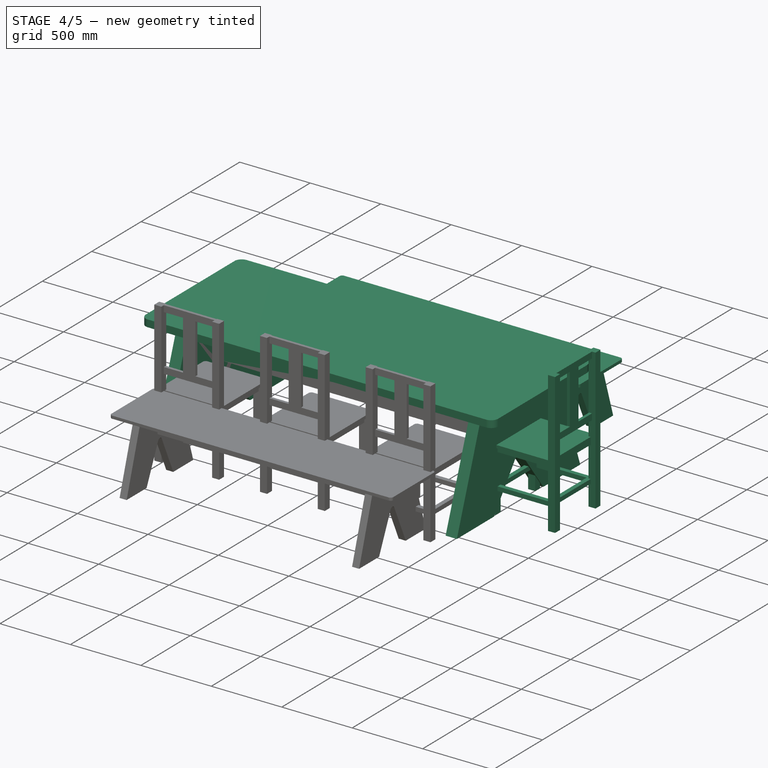
[diagram: stage 4 of 5 — iso view after this stage's code; geometry added in this stage tinted green]
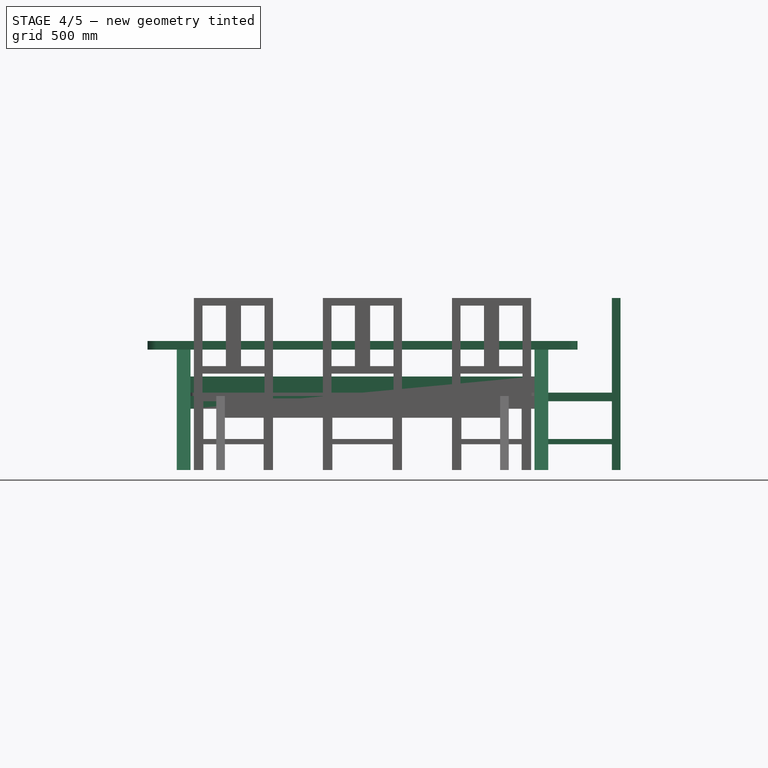
[diagram: stage 4 of 5 — front view after this stage's code; geometry added in this stage tinted green]
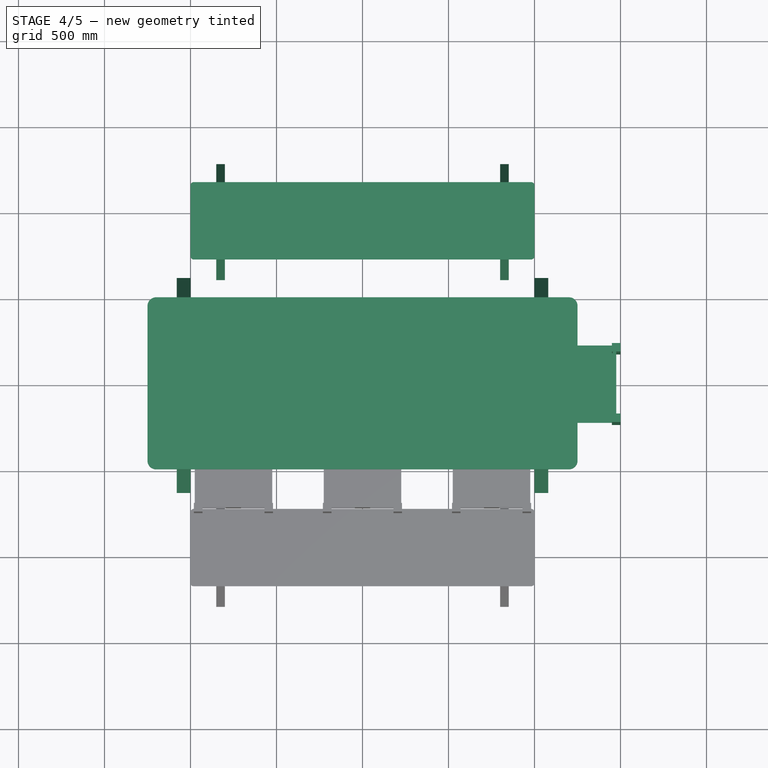
[diagram: stage 4 of 5 — top view after this stage's code; geometry added in this stage tinted green]
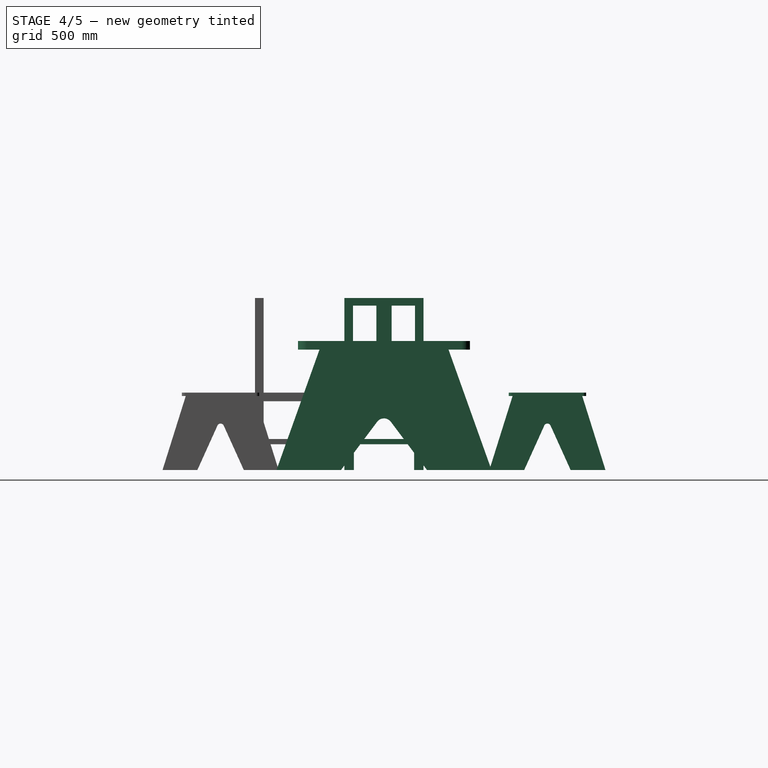
[diagram: stage 4 of 5 — right view after this stage's code; geometry added in this stage tinted green]
FEATURE [Part::FeaturePython] Clone002  label="Compound002"  # Draft clone (typed FeaturePython)
  AttacherType = Attacher::AttachEngine3D
  Fuse = false
  Objects = -> [Compound]
  Placement = pos=(1475,0,0) rot=(0,0,-1;1.5708rad)
  Scale = (1,1,1)
  expr: .Placement.Base.x = +<<Tab_mesa>>.comprimento / 2 + <<Tab_assentos>>.comprimento / 2
FEATURE [Sketcher::SketchObject] Sketch014
  FullyConstrained = true
  expr: Constraints[15] = <<Tab_mesa>>.suavisacantos
  expr: Constraints[16] = <<Tab_mesa>>.comprimento
  expr: Constraints[17] = <<Tab_mesa>>.largura
  sketch-geometry (8):
    g0: LineSegment StartX=-1200 StartY=500 StartZ=0 EndX=1200 EndY=500 EndZ=0
    g1: LineSegment StartX=1250 StartY=450 StartZ=0 EndX=1250 EndY=-450 EndZ=0
    g2: LineSegment StartX=1200 StartY=-500 StartZ=0 EndX=-1200 EndY=-500 EndZ=0
    g3: LineSegment StartX=-1250 StartY=-450 StartZ=0 EndX=-1250 EndY=450 EndZ=0
    g4: ArcOfCircle CenterX=-1200 CenterY=-450 CenterZ=0 NormalX=0 NormalY=0 NormalZ=1 AngleXU=0 Radius=50 StartAngle=3.14159 EndAngle=4.71239
    g5: ArcOfCircle CenterX=1200 CenterY=-450 CenterZ=0 NormalX=0 NormalY=0 NormalZ=1 AngleXU=0 Radius=50 StartAngle=4.71239 EndAngle=6.28319
    g6: ArcOfCircle CenterX=1200 CenterY=450 CenterZ=0 NormalX=0 NormalY=0 NormalZ=1 AngleXU=0 Radius=50 StartAngle=3e-16 EndAngle=1.5708
    g7: ArcOfCircle CenterX=-1200 CenterY=450 CenterZ=0 NormalX=0 NormalY=0 NormalZ=1 AngleXU=0 Radius=50 StartAngle=1.5708 EndAngle=3.14159
  constraints (19):
    c: Horizontal(g0)
    c: Horizontal(g2)
    c: Vertical(g1)
    c: Vertical(g3)
    c: Tangent(g2,g4) = 1.5708
    c: Tangent(g3,g4) = 1.5708
    c: Tangent(g1,g5) = 1.5708
    c: Tangent(g2,g5) = 1.5708
    c: Tangent(g1,g6) = 1.5708
    c: Tangent(g0,g6) = 1.5708
    c: Tangent(g0,g7) = 1.5708
    c: Tangent(g3,g7) = 1.5708
    c: Equal(g7,g6)
    c: Equal(g5,g4)
    c: Equal(g4,g7)
    c: Radius(g7) = 50
    c: DistanceX(g3,g1) = 2500
    c: DistanceY(g2,g0) = 1000
    c: Symmetric(g7,g5,g-1)
FEATURE [Part::Extrusion] Extrude014  label="Tampo002"
  Base = -> Sketch014
  Dir = (0,0,1)
  DirMode = 2
  FaceMakerClass = Part::FaceMakerBullseye
  LengthFwd = 50
  LengthRev = 0
  Placement = pos=(0,0,700) rot=(0,0,1;0rad)
  Solid = true
  Symmetric = false
  expr: .Placement.Base.z = <<Tab_mesa>>.altura - <<Tab_mesa>>.especura
  expr: LengthFwd = <<Tab_mesa>>.especura
FEATURE [Sketcher::SketchObject] Sketch015
  FullyConstrained = true
  Placement = pos=(0,0,0) rot=(0.57735,0.57735,0.57735;2.0944rad)
  expr: .Constraints.largura = <<Tab_mesa>>.largura - <<Tab_mesa>>.comprimento * 0.1
  expr: Constraints[12] = .Constraints.largura / 2
  expr: Constraints[14] = .Constraints.largura / 3
  expr: Constraints[17] = <<Tab_mesa>>.suavisacantos
  expr: Constraints[19] = <<Tab_mesa>>.altura - <<Tab_mesa>>.especura
  expr: Constraints[20] = <<Tab_mesa>>.altura / 3
  sketch-geometry (8):
    g0: LineSegment StartX=-625 StartY=0 StartZ=0 EndX=-375 EndY=700 EndZ=0
    g1: LineSegment StartX=-375 StartY=700 StartZ=0 EndX=375 EndY=700 EndZ=0
    g2: LineSegment StartX=375 StartY=700 StartZ=0 EndX=625 EndY=0 EndZ=0
    g3: LineSegment StartX=625 StartY=0 StartZ=0 EndX=250 EndY=0 EndZ=0
    g4: LineSegment StartX=250 StartY=0 StartZ=0 EndX=40 EndY=280 EndZ=0
    g5: LineSegment StartX=-40 StartY=280 StartZ=0 EndX=-250 EndY=0 EndZ=0
    g6: LineSegment StartX=-250 StartY=0 StartZ=0 EndX=-625 EndY=0 EndZ=0
    g7: ArcOfCircle CenterX=0 CenterY=250 CenterZ=0 NormalX=0 NormalY=0 NormalZ=1 AngleXU=0 Radius=50 StartAngle=0.643501 EndAngle=2.49809
  constraints (21):
    c: Coincident(g1,g0)
    c: Coincident(g2,g1)
    c: PointOnObject(g2,g-1)
    c: Coincident(g3,g2)
    c: PointOnObject(g3,g-1)
    c: Coincident(g4,g3)
    c: Coincident(g6,g5)
    c: Coincident(g6,g0)
    c: PointOnObject(g0,g-1)
    c: Symmetric(g0,g1,g-2)
    c: Equal(g6,g3)
    c: DistanceX(g1,g1) = 750  'largura'
    c: DistanceX(g6,g6) = 375
    c: Symmetric(g5,g3,g-2)
    c: DistanceX(g5,g-1) = 250
    c: Tangent(g5,g7) = -1.5708
    c: Tangent(g4,g7) = -1.5708
    c: Radius(g7) = 50
    c: PointOnObject(g7,g-2)
    c: DistanceY(g0,g0) = 700
    c: DistanceY(g-1,g7) = 250
FEATURE [Part::Extrusion] Extrude015  label="Pé"
  Base = -> Sketch015
  Dir = (1,0,0)
  DirMode = 2
  FaceMakerClass = Part::FaceMakerBullseye
  LengthFwd = 80
  LengthRev = 0
  Placement = pos=(1000,0,0) rot=(0,0,1;0rad)
  Solid = true
  Symmetric = false
  expr: .Placement.Base.x = <<Tab_mesa>>.comprimento / 2 * 0.8
  expr: LengthFwd = <<Tab_mesa>>.especura_pe
FEATURE [Sketcher::SketchObject] Sketch016
  FullyConstrained = true
  Placement = pos=(0,0,0) rot=(0.57735,0.57735,0.57735;2.0944rad)
  expr: .Constraints.largura = <<Tab_mesa>>.largura - <<Tab_mesa>>.comprimento * 0.1
  expr: Constraints[12] = .Constraints.largura / 2
  expr: Constraints[14] = .Constraints.largura / 3
  expr: Constraints[17] = <<Tab_mesa>>.suavisacantos
  expr: Constraints[19] = <<Tab_mesa>>.altura - <<Tab_mesa>>.especura
  expr: Constraints[20] = <<Tab_mesa>>.altura / 3
  sketch-geometry (8):
    g0: LineSegment StartX=-625 StartY=0 StartZ=0 EndX=-375 EndY=700 EndZ=0
    g1: LineSegment StartX=-375 StartY=700 StartZ=0 EndX=375 EndY=700 EndZ=0
    g2: LineSegment StartX=375 StartY=700 StartZ=0 EndX=625 EndY=0 EndZ=0
    g3: LineSegment StartX=625 StartY=0 StartZ=0 EndX=250 EndY=0 EndZ=0
    g4: LineSegment StartX=250 StartY=0 StartZ=0 EndX=40 EndY=280 EndZ=0
    g5: LineSegment StartX=-40 StartY=280 StartZ=0 EndX=-250 EndY=0 EndZ=0
    g6: LineSegment StartX=-250 StartY=0 StartZ=0 EndX=-625 EndY=0 EndZ=0
    g7: ArcOfCircle CenterX=0 CenterY=250 CenterZ=0 NormalX=0 NormalY=0 NormalZ=1 AngleXU=0 Radius=50 StartAngle=0.643501 EndAngle=2.49809
  constraints (21):
    c: Coincident(g1,g0)
    c: Coincident(g2,g1)
    c: PointOnObject(g2,g-1)
    c: Coincident(g3,g2)
    c: PointOnObject(g3,g-1)
    c: Coincident(g4,g3)
    c: Coincident(g6,g5)
    c: Coincident(g6,g0)
    c: PointOnObject(g0,g-1)
    c: Symmetric(g0,g1,g-2)
    c: Equal(g6,g3)
    c: DistanceX(g1,g1) = 750  'largura'
    c: DistanceX(g6,g6) = 375
    c: Symmetric(g5,g3,g-2)
    c: DistanceX(g5,g-1) = 250
    c: Tangent(g5,g7) = -1.5708
    c: Tangent(g4,g7) = -1.5708
    c: Radius(g7) = 50
    c: PointOnObject(g7,g-2)
    c: DistanceY(g0,g0) = 700
    c: DistanceY(g-1,g7) = 250
FEATURE [Part::Extrusion] Extrude016  label="Pé001"
  Base = -> Sketch016
  Dir = (1,0,0)
  DirMode = 2
  FaceMakerClass = Part::FaceMakerBullseye
  LengthFwd = 80
  LengthRev = 0
  Placement = pos=(-1080,0,0) rot=(0,0,1;0rad)
  Solid = true
  Symmetric = false
  expr: .Placement.Base.x = -<<Tab_mesa>>.comprimento / 2 * 0.8 - <<Tab_mesa>>.especura_pe
  expr: LengthFwd = <<Tab_mesa>>.especura_pe
FEATURE [Sketcher::SketchObject] Sketch017
  FullyConstrained = true
  Placement = pos=(0,0,0) rot=(1,0,0;1.5708rad)
  expr: Constraints[10] = <<Tab_mesa>>.comprimento * 0.8
  expr: Constraints[9] = <<Tab_mesa>>.altura / 4
  sketch-geometry (4):
    g0: LineSegment StartX=-1000 StartY=93.75 StartZ=0 EndX=1000 EndY=93.75 EndZ=0
    g1: LineSegment StartX=1000 StartY=93.75 StartZ=0 EndX=1000 EndY=-93.75 EndZ=0
    g2: LineSegment StartX=1000 StartY=-93.75 StartZ=0 EndX=-1000 EndY=-93.75 EndZ=0
    g3: LineSegment StartX=-1000 StartY=-93.75 StartZ=0 EndX=-1000 EndY=93.75 EndZ=0
  constraints (11):
    c: Coincident(g0,g1)
    c: Coincident(g1,g2)
    c: Coincident(g2,g3)
    c: Coincident(g3,g0)
    c: Horizontal(g0)
    c: Horizontal(g2)
    c: Vertical(g1)
    c: Vertical(g3)
    c: Symmetric(g0,g1,g-1)
    c: DistanceY(g3,g3) = 187.5
    c: DistanceX(g0,g0) = 2000
FEATURE [Part::Extrusion] Extrude017  label="Suporte001"
  Base = -> Sketch017
  Dir = (0,-1,2e-16)
  DirMode = 2
  FaceMakerClass = Part::FaceMakerBullseye
  LengthFwd = 25
  LengthRev = 25
  Placement = pos=(0,0,450) rot=(0,0,1;0rad)
  Solid = true
  Symmetric = false
  expr: .Placement.Base.z = <<Tab_mesa>>.altura * 0.6
  expr: LengthFwd = <<Tab_mesa>>.especura / 2
  expr: LengthRev = <<Tab_mesa>>.especura / 2
FEATURE [Part::Compound] Compound001  label="Banco"
  Links = -> [Extrude018,Extrude019,Extrude020,Extrude021]
  Placement = pos=(0,950,0) rot=(0,0,1;0rad)
  expr: .Placement.Base.y = <<Tab_mesa>>.largura / 2 + <<Tab_assentos>>.largura
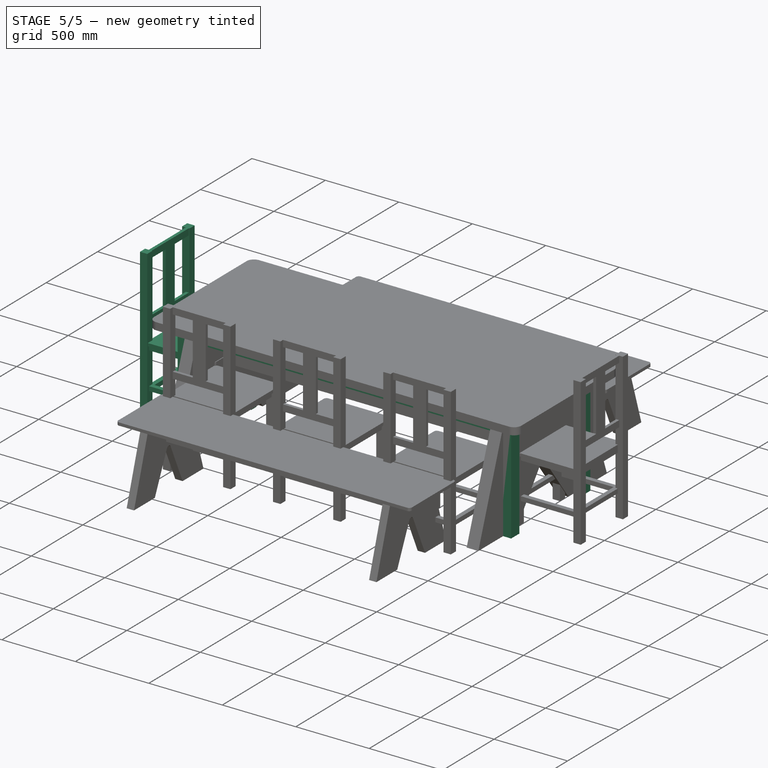
[diagram: stage 5 of 5 — iso view after this stage's code; geometry added in this stage tinted green]
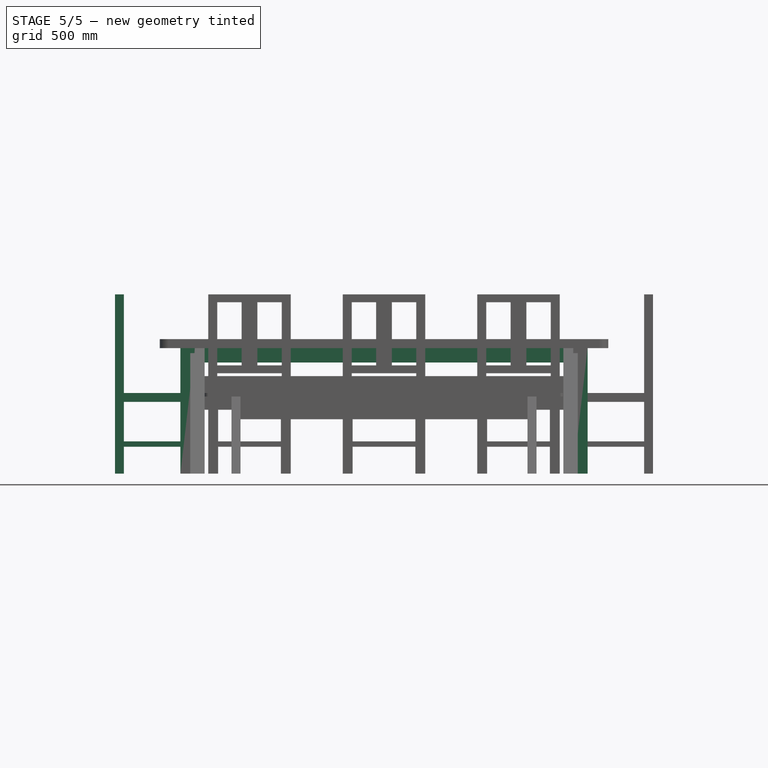
[diagram: stage 5 of 5 — front view after this stage's code; geometry added in this stage tinted green]
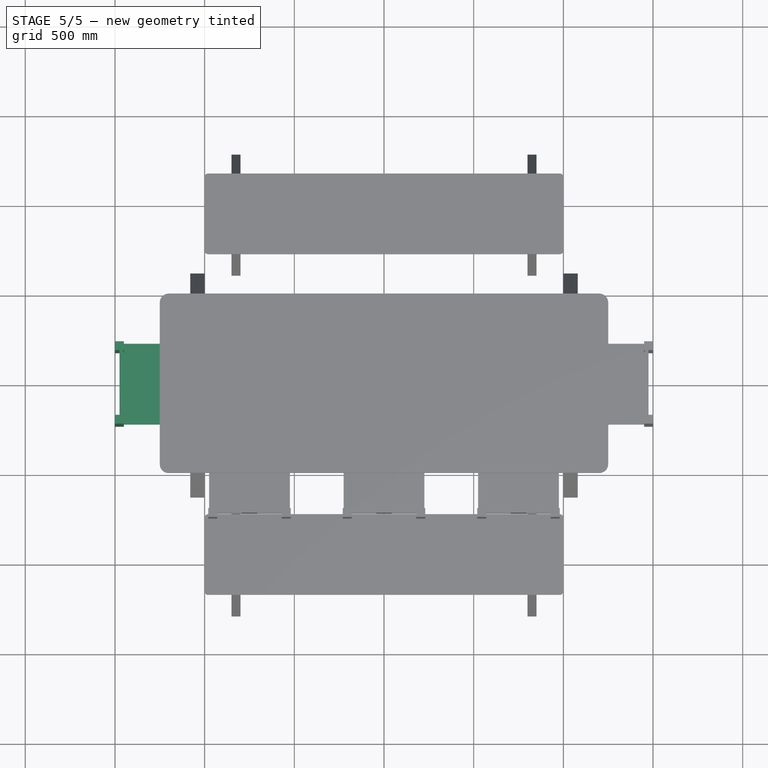
[diagram: stage 5 of 5 — top view after this stage's code; geometry added in this stage tinted green]
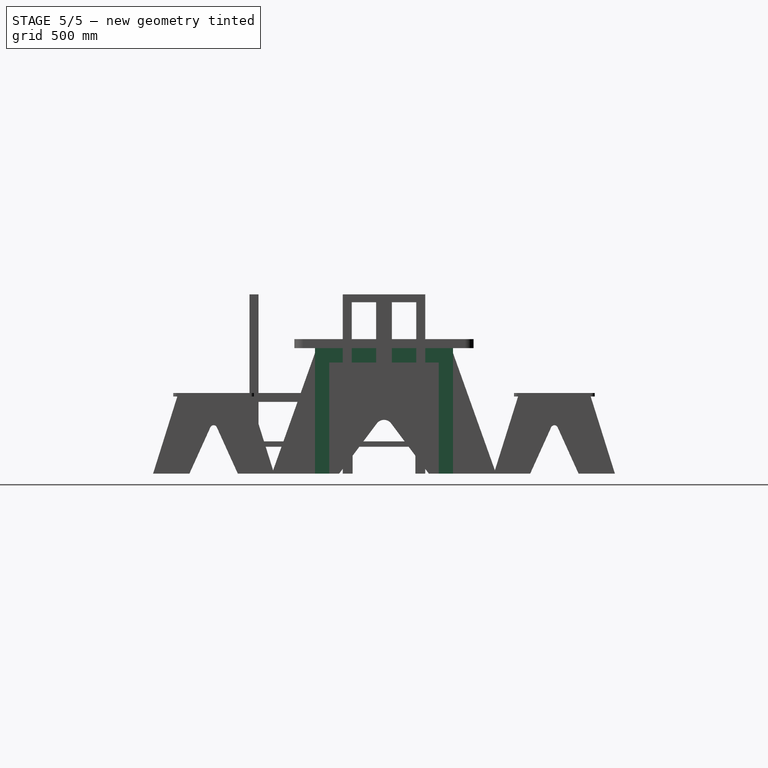
[diagram: stage 5 of 5 — right view after this stage's code; geometry added in this stage tinted green]
FEATURE [Sketcher::SketchObject] Sketch
  FullyConstrained = true
  expr: Constraints[15] = <<Tab_mesa>>.suavisacantos
  expr: Constraints[16] = <<Tab_mesa>>.comprimento
  expr: Constraints[17] = <<Tab_mesa>>.largura
  sketch-geometry (8):
    g0: LineSegment StartX=-1200 StartY=500 StartZ=0 EndX=1200 EndY=500 EndZ=0
    g1: LineSegment StartX=1250 StartY=450 StartZ=0 EndX=1250 EndY=-450 EndZ=0
    g2: LineSegment StartX=1200 StartY=-500 StartZ=0 EndX=-1200 EndY=-500 EndZ=0
    g3: LineSegment StartX=-1250 StartY=-450 StartZ=0 EndX=-1250 EndY=450 EndZ=0
    g4: ArcOfCircle CenterX=-1200 CenterY=-450 CenterZ=0 NormalX=0 NormalY=0 NormalZ=1 AngleXU=0 Radius=50 StartAngle=3.14159 EndAngle=4.71239
    g5: ArcOfCircle CenterX=1200 CenterY=-450 CenterZ=0 NormalX=0 NormalY=0 NormalZ=1 AngleXU=0 Radius=50 StartAngle=4.71239 EndAngle=6.28319
    g6: ArcOfCircle CenterX=1200 CenterY=450 CenterZ=0 NormalX=0 NormalY=0 NormalZ=1 AngleXU=0 Radius=50 StartAngle=-9e-16 EndAngle=1.5708
    g7: ArcOfCircle CenterX=-1200 CenterY=450 CenterZ=0 NormalX=0 NormalY=0 NormalZ=1 AngleXU=0 Radius=50 StartAngle=1.5708 EndAngle=3.14159
  constraints (19):
    c: Horizontal(g0)
    c: Horizontal(g2)
    c: Vertical(g1)
    c: Vertical(g3)
    c: Tangent(g2,g4) = 1.5708
    c: Tangent(g3,g4) = 1.5708
    c: Tangent(g1,g5) = 1.5708
    c: Tangent(g2,g5) = 1.5708
    c: Tangent(g1,g6) = 1.5708
    c: Tangent(g0,g6) = 1.5708
    c: Tangent(g0,g7) = 1.5708
    c: Tangent(g3,g7) = 1.5708
    c: Equal(g7,g6)
    c: Equal(g5,g4)
    c: Equal(g4,g7)
    c: Radius(g7) = 50
    c: DistanceX(g3,g1) = 2500
    c: DistanceY(g2,g0) = 1000
    c: Symmetric(g7,g5,g-1)
FEATURE [Part::Extrusion] Extrude  label="Tampo"
  Base = -> Sketch
  Dir = (0,0,1)
  DirMode = 2
  FaceMakerClass = Part::FaceMakerBullseye
  LengthFwd = 50
  LengthRev = 0
  Placement = pos=(0,0,700) rot=(0,0,1;0rad)
  Solid = true
  Symmetric = false
  expr: .Placement.Base.z = <<Tab_mesa>>.altura - <<Tab_mesa>>.especura
  expr: LengthFwd = <<Tab_mesa>>.especura
FEATURE [Spreadsheet::Sheet] Spreadsheet  label="Tab_mesa"
  cells = A1='DIMENÇOES; A2='Comprimento; B2(comprimento)==250 cm; A3='Largura; B3(largura)==1 m; A4='Altura; B4(altura)==0.75 m; A5='Nª Cadeiras de cada lado; B5(n_cadeiras)=3; A6='Espeçura; B6(especura)==50 mm; A7='Suavisar Cantos; B7(suavisacantos)==50 mm; A8='Espeçura dos pés; B8(especura_pe)==80 mm
FEATURE [Sketcher::SketchObject] Sketch001
  FullyConstrained = true
  expr: .Constraints.comp_suporte = <<Tab_mesa>>.comprimento * 0.9
  expr: .Constraints.larg_suporte = <<Tab_mesa>>.largura - <<Tab_mesa>>.comprimento * 0.1
  expr: Constraints[18] = .Constraints.comp_suporte * 0.02
  expr: Constraints[19] = .Constraints.comp_suporte * 0.02
  expr: Constraints[20] = .Constraints.comp_suporte * 0.02
  expr: Constraints[21] = .Constraints.comp_suporte * 0.02
  sketch-geometry (8):
    g0: LineSegment StartX=-1125 StartY=375 StartZ=0 EndX=1125 EndY=375 EndZ=0
    g1: LineSegment StartX=1125 StartY=375 StartZ=0 EndX=1125 EndY=-375 EndZ=0
    g2: LineSegment StartX=1125 StartY=-375 StartZ=0 EndX=-1125 EndY=-375 EndZ=0
    g3: LineSegment StartX=-1125 StartY=-375 StartZ=0 EndX=-1125 EndY=375 EndZ=0
    g4: LineSegment StartX=-1080 StartY=330 StartZ=0 EndX=1080 EndY=330 EndZ=0
    g5: LineSegment StartX=1080 StartY=330 StartZ=0 EndX=1080 EndY=-330 EndZ=0
    g6: LineSegment StartX=1080 StartY=-330 StartZ=0 EndX=-1080 EndY=-330 EndZ=0
    g7: LineSegment StartX=-1080 StartY=-330 StartZ=0 EndX=-1080 EndY=330 EndZ=0
  constraints (23):
    c: Coincident(g0,g1)
    c: Coincident(g1,g2)
    c: Coincident(g2,g3)
    c: Coincident(g3,g0)
    c: Horizontal(g0)
    c: Horizontal(g2)
    c: Vertical(g1)
    c: Vertical(g3)
    c: Distance(g0) = 2250  'comp_suporte'
    c: Distance(g3) = 750  'larg_suporte'
    c: Coincident(g4,g5)
    c: Coincident(g5,g6)
    c: Coincident(g6,g7)
    c: Coincident(g7,g4)
    c: Horizontal(g4)
    c: Horizontal(g6)
    c: Vertical(g5)
    c: Vertical(g7)
    c: DistanceY(g4,g0) = 45
    c: DistanceX(g4,g0) = 45
    c: DistanceX(g2,g6) = 45
    c: DistanceY(g2,g6) = 45
    c: Symmetric(g0,g1,g-1)
FEATURE [Part::Extrusion] Extrude001  label="Suporte"
  Base = -> Sketch001
  Dir = (0,0,1)
  DirMode = 2
  FaceMakerClass = Part::FaceMakerBullseye
  LengthFwd = 80
  LengthRev = 0
  Placement = pos=(0,0,620) rot=(0,0,1;0rad)
  Solid = true
  Symmetric = false
  expr: .Placement.Base.z = <<Tab_mesa>>.altura - <<Tab_mesa>>.especura - <<Tab_mesa>>.especura * 2 * 0.8
  expr: LengthFwd = <<Tab_mesa>>.especura * 2 * 0.8
FEATURE [Sketcher::SketchObject] Sketch002
  FullyConstrained = true
  expr: Constraints[8] = <<Tab_mesa>>.especura_pe
  expr: Constraints[9] = <<Tab_mesa>>.especura_pe
  sketch-geometry (4):
    g0: LineSegment StartX=40 StartY=-40 StartZ=0 EndX=-40 EndY=-40 EndZ=0
    g1: LineSegment StartX=-40 StartY=-40 StartZ=0 EndX=-40 EndY=40 EndZ=0
    g2: LineSegment StartX=-40 StartY=40 StartZ=0 EndX=40 EndY=40 EndZ=0
    g3: LineSegment StartX=40 StartY=40 StartZ=0 EndX=40 EndY=-40 EndZ=0
  constraints (11):
    c: Coincident(g0,g1)
    c: Coincident(g1,g2)
    c: Coincident(g2,g3)
    c: Coincident(g3,g0)
    c: Horizontal(g0)
    c: Horizontal(g2)
    c: Vertical(g1)
    c: Vertical(g3)
    c: Distance(g0) = 80
    c: Distance(g3) = 80
    c: Symmetric(g1,g0,g-1)
FEATURE [Part::Extrusion] Extrude002  label="pés"
  Base = -> Sketch002
  Dir = (0,0,1)
  DirMode = 2
  FaceMakerClass = Part::FaceMakerBullseye
  LengthFwd = 700
  LengthRev = 0
  Placement = pos=(1095,345,0) rot=(0,0,1;0rad)
  Solid = true
  Symmetric = false
  expr: .Placement.Base.x = <<Tab_mesa>>.comprimento * 0.9 / 2 - <<Tab_mesa>>.especura_pe / 2 + 10 mm
  expr: .Placement.Base.y = (<<Tab_mesa>>.largura - <<Tab_mesa>>.comprimento * 0.1) / 2 - <<Tab_mesa>>.especura_pe / 2 + 10 mm
  expr: LengthFwd = <<Tab_mesa>>.altura - <<Tab_mesa>>.especura
FEATURE [Sketcher::SketchObject] Sketch009
  FullyConstrained = true
  expr: Constraints[8] = <<Tab_mesa>>.especura_pe
  expr: Constraints[9] = <<Tab_mesa>>.especura_pe
  sketch-geometry (4):
    g0: LineSegment StartX=40 StartY=-40 StartZ=0 EndX=-40 EndY=-40 EndZ=0
    g1: LineSegment StartX=-40 StartY=-40 StartZ=0 EndX=-40 EndY=40 EndZ=0
    g2: LineSegment StartX=-40 StartY=40 StartZ=0 EndX=40 EndY=40 EndZ=0
    g3: LineSegment StartX=40 StartY=40 StartZ=0 EndX=40 EndY=-40 EndZ=0
  constraints (11):
    c: Coincident(g0,g1)
    c: Coincident(g1,g2)
    c: Coincident(g2,g3)
    c: Coincident(g3,g0)
    c: Horizontal(g0)
    c: Horizontal(g2)
    c: Vertical(g1)
    c: Vertical(g3)
    c: Distance(g0) = 80
    c: Distance(g3) = 80
    c: Symmetric(g1,g0,g-1)
FEATURE [Part::Extrusion] Extrude009  label="pés001"
  Base = -> Sketch009
  Dir = (0,0,1)
  DirMode = 2
  FaceMakerClass = Part::FaceMakerBullseye
  LengthFwd = 700
  LengthRev = 0
  Placement = pos=(-1095,-345,0) rot=(0,0,1;0rad)
  Solid = true
  Symmetric = false
  expr: .Placement.Base.x = -(<<Tab_mesa>>.comprimento * 0.9 / 2 - <<Tab_mesa>>.especura_pe / 2 + 10 mm)
  expr: .Placement.Base.y = -((<<Tab_mesa>>.largura - <<Tab_mesa>>.comprimento * 0.1) / 2 - <<Tab_mesa>>.especura_pe / 2 + 10 mm)
  expr: LengthFwd = <<Tab_mesa>>.altura - <<Tab_mesa>>.especura
FEATURE [Sketcher::SketchObject] Sketch010
  FullyConstrained = true
  expr: Constraints[8] = <<Tab_mesa>>.especura_pe
  expr: Constraints[9] = <<Tab_mesa>>.especura_pe
  sketch-geometry (4):
    g0: LineSegment StartX=40 StartY=-40 StartZ=0 EndX=-40 EndY=-40 EndZ=0
    g1: LineSegment StartX=-40 StartY=-40 StartZ=0 EndX=-40 EndY=40 EndZ=0
    g2: LineSegment StartX=-40 StartY=40 StartZ=0 EndX=40 EndY=40 EndZ=0
    g3: LineSegment StartX=40 StartY=40 StartZ=0 EndX=40 EndY=-40 EndZ=0
  constraints (11):
    c: Coincident(g0,g1)
    c: Coincident(g1,g2)
    c: Coincident(g2,g3)
    c: Coincident(g3,g0)
    c: Horizontal(g0)
    c: Horizontal(g2)
    c: Vertical(g1)
    c: Vertical(g3)
    c: Distance(g0) = 80
    c: Distance(g3) = 80
    c: Symmetric(g1,g0,g-1)
FEATURE [Part::Extrusion] Extrude010  label="pés002"
  Base = -> Sketch010
  Dir = (0,0,1)
  DirMode = 2
  FaceMakerClass = Part::FaceMakerBullseye
  LengthFwd = 700
  LengthRev = 0
  Placement = pos=(-1095,345,0) rot=(0,0,1;0rad)
  Solid = true
  Symmetric = false
  expr: .Placement.Base.x = -(<<Tab_mesa>>.comprimento * 0.9 / 2 - <<Tab_mesa>>.especura_pe / 2 + 10 mm)
  expr: .Placement.Base.y = (<<Tab_mesa>>.largura - <<Tab_mesa>>.comprimento * 0.1) / 2 - <<Tab_mesa>>.especura_pe / 2 + 10 mm
  expr: LengthFwd = <<Tab_mesa>>.altura - <<Tab_mesa>>.especura
FEATURE [Sketcher::SketchObject] Sketch011
  FullyConstrained = true
  expr: Constraints[8] = <<Tab_mesa>>.especura_pe
  expr: Constraints[9] = <<Tab_mesa>>.especura_pe
  sketch-geometry (4):
    g0: LineSegment StartX=40 StartY=-40 StartZ=0 EndX=-40 EndY=-40 EndZ=0
    g1: LineSegment StartX=-40 StartY=-40 StartZ=0 EndX=-40 EndY=40 EndZ=0
    g2: LineSegment StartX=-40 StartY=40 StartZ=0 EndX=40 EndY=40 EndZ=0
    g3: LineSegment StartX=40 StartY=40 StartZ=0 EndX=40 EndY=-40 EndZ=0
  constraints (11):
    c: Coincident(g0,g1)
    c: Coincident(g1,g2)
    c: Coincident(g2,g3)
    c: Coincident(g3,g0)
    c: Horizontal(g0)
    c: Horizontal(g2)
    c: Vertical(g1)
    c: Vertical(g3)
    c: Distance(g0) = 80
    c: Distance(g3) = 80
    c: Symmetric(g1,g0,g-1)
FEATURE [Part::Extrusion] Extrude011  label="pés003"
  Base = -> Sketch011
  Dir = (0,0,1)
  DirMode = 2
  FaceMakerClass = Part::FaceMakerBullseye
  LengthFwd = 700
  LengthRev = 0
  Placement = pos=(1095,-345,0) rot=(0,0,1;0rad)
  Solid = true
  Symmetric = false
  expr: .Placement.Base.x = <<Tab_mesa>>.comprimento * 0.9 / 2 - <<Tab_mesa>>.especura_pe / 2 + 10 mm
  expr: .Placement.Base.y = -((<<Tab_mesa>>.largura - <<Tab_mesa>>.comprimento * 0.1) / 2 - <<Tab_mesa>>.especura_pe / 2 + 10 mm)
  expr: LengthFwd = <<Tab_mesa>>.altura - <<Tab_mesa>>.especura
FEATURE [Part::FeaturePython] Clone001  label="Compound001"  # Draft clone (typed FeaturePython)
  AttacherType = Attacher::AttachEngine3D
  Fuse = false
  Objects = -> [Compound]
  Placement = pos=(-1475,0,0) rot=(0,0,1;1.5708rad)
  Scale = (1,1,1)
  expr: .Placement.Base.x = -<<Tab_mesa>>.comprimento / 2 - <<Tab_assentos>>.comprimento / 2
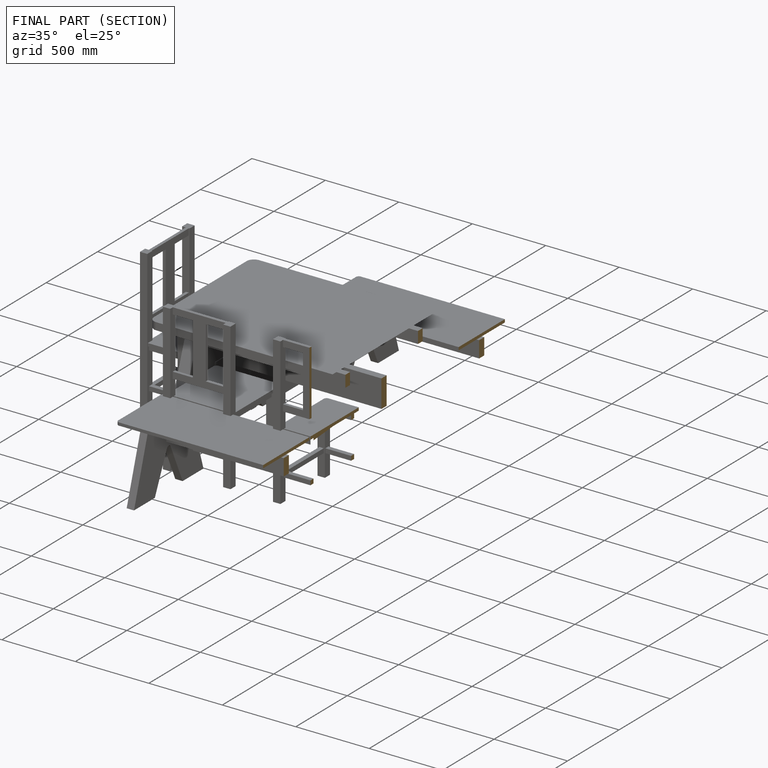
[diagram: finished part — half-section view (interior)]
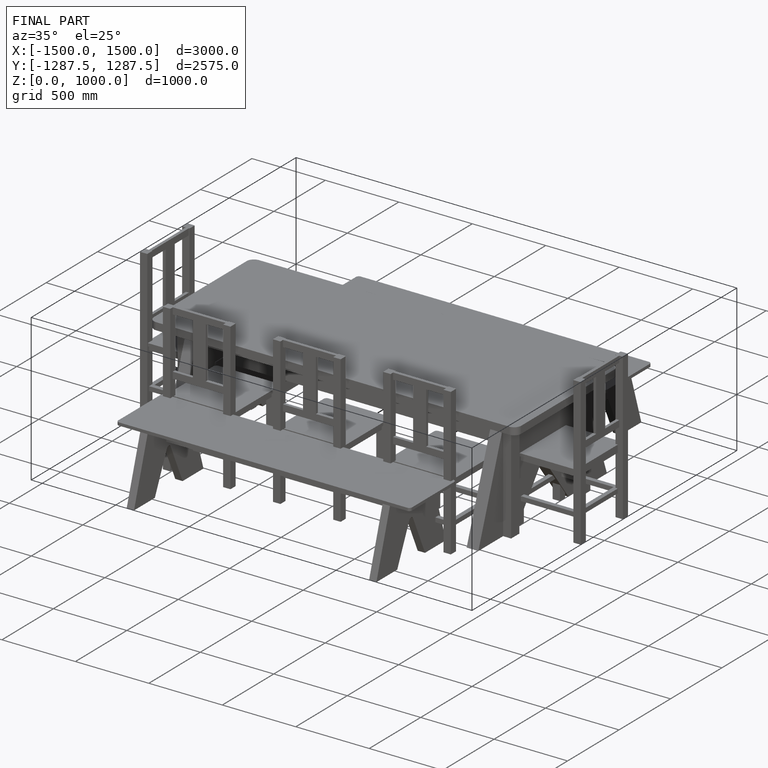
[diagram: finished part — iso view with bounding-box wireframe]
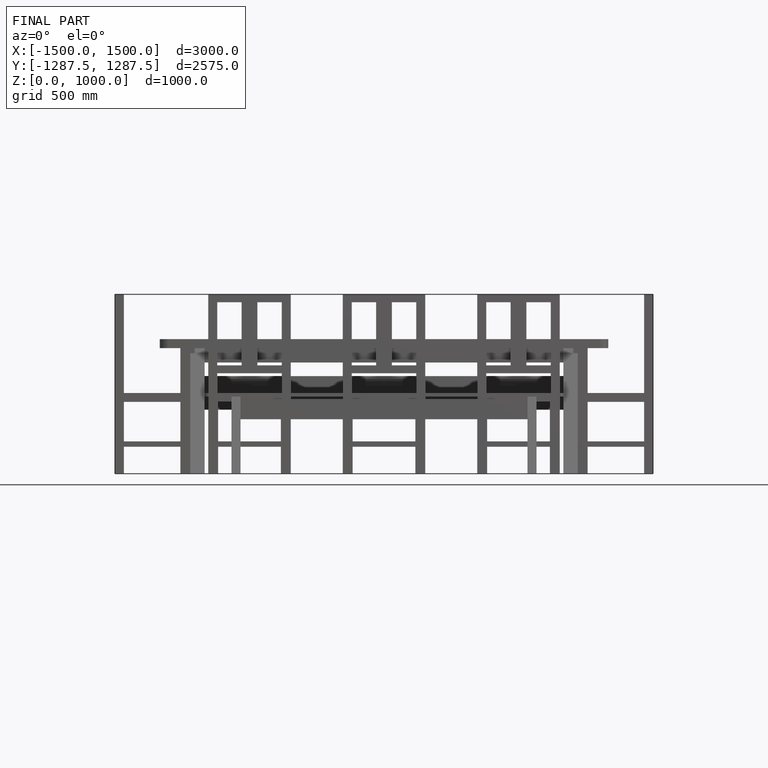
[diagram: finished part — front view with bounding-box wireframe]
